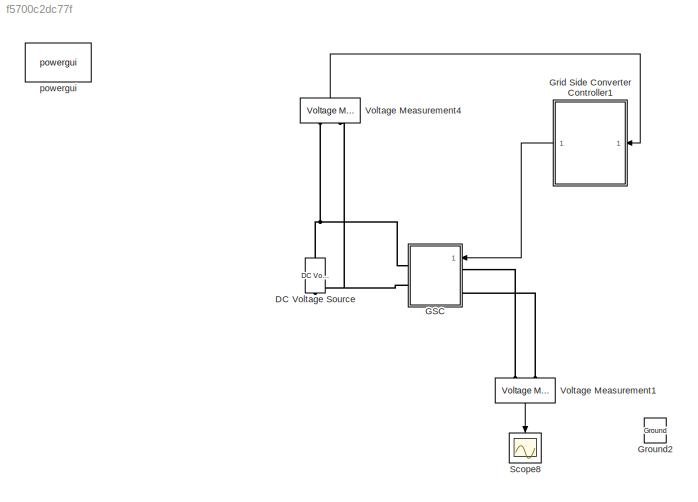
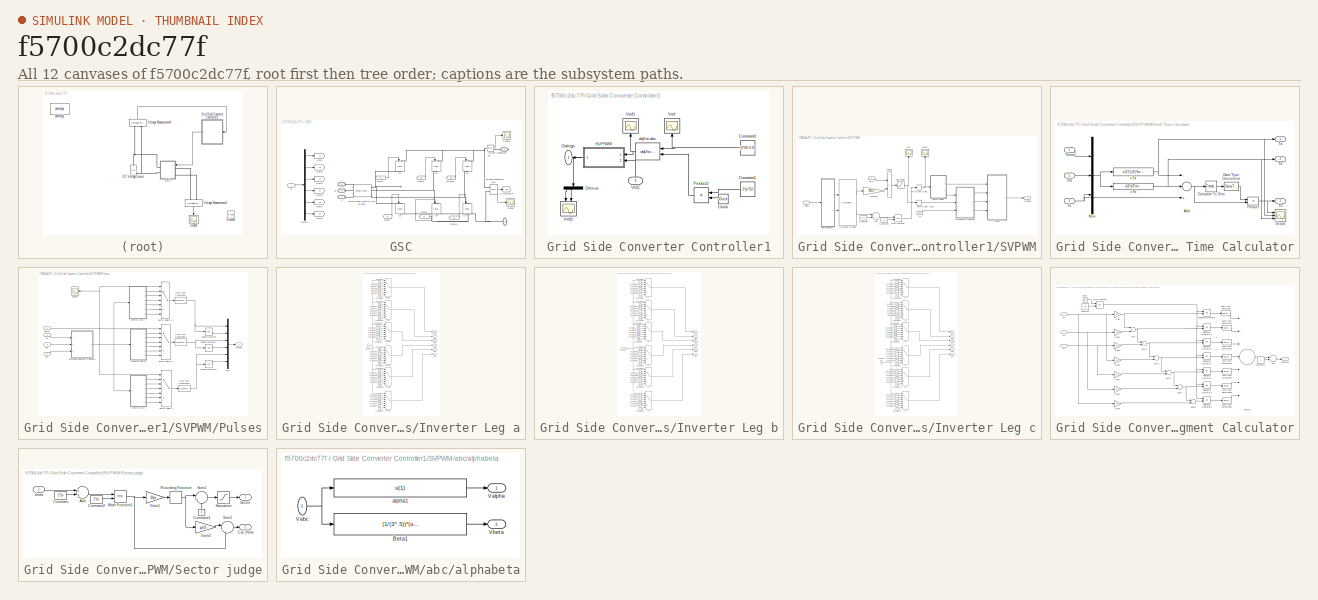
[diagram: thumbnail index - all 12 canvases of the model, root first then tree order]
MODEL slx_f5700c2dc77f
KIND model
BLOCK [Reference] DC Voltage Source  REF=powerlib/Electrical
Sources/DC Voltage Source
  Amplitude = 800
  Measurements = None
  Ports = [0, 0, 0, 0, 0, 1, 1]
  SourceBlock = powerlib/Electrical\nSources/DC Voltage Source
  SourceType = DC Voltage Source
BLOCK [SubSystem] GSC
  FunctionWithSeparateData = off
  MaskHideContents = off
  MinAlgLoopOccurrences = off
  Opaque = off
  Ports = [1, 0, 0, 0, 0, 3, 2]
  PropExecContextOutsideSubsystem = off
  RTWSystemCode = Auto
  RequestExecContextInheritance = off
BLOCK [Reference] GSC/ S1  REF=powerlib/Power
Electronics/Ideal Switch
  Cs = inf
  IC = 1
  Lon = 0
  Measurements = off
  Ports = [1, 0, 0, 0, 0, 1, 1]
  Ron = Ron
  Rs = 1e9
  SourceBlock = powerlib/Power\nElectronics/Ideal Switch
  SourceType = Ideal Switch
BLOCK [Reference] GSC/ S2  REF=powerlib/Power
Electronics/Ideal Switch
  Cs = inf
  IC = 0
  Lon = 0
  Measurements = off
  Ports = [1, 0, 0, 0, 0, 1, 1]
  Ron = Ron
  Rs = 1e9
  SourceBlock = powerlib/Power\nElectronics/Ideal Switch
  SourceType = Ideal Switch
BLOCK [Reference] GSC/ S3  REF=powerlib/Power
Electronics/Ideal Switch
  Cs = inf
  IC = 1
  Lon = 0
  Measurements = off
  Ports = [1, 0, 0, 0, 0, 1, 1]
  Ron = Ron
  Rs = 1e9
  SourceBlock = powerlib/Power\nElectronics/Ideal Switch
  SourceType = Ideal Switch
BLOCK [Reference] GSC/ S4  REF=powerlib/Power
Electronics/Ideal Switch
  Cs = inf
  IC = 0
  Lon = 0
  Measurements = off
  Ports = [1, 0, 0, 0, 0, 1, 1]
  Ron = Ron
  Rs = 1e9
  SourceBlock = powerlib/Power\nElectronics/Ideal Switch
  SourceType = Ideal Switch
BLOCK [Reference] GSC/ S5  REF=powerlib/Power
Electronics/Ideal Switch
  Cs = inf
  IC = 1
  Lon = 0
  Measurements = off
  Ports = [1, 0, 0, 0, 0, 1, 1]
  Ron = Ron
  Rs = 1e9
  SourceBlock = powerlib/Power\nElectronics/Ideal Switch
  SourceType = Ideal Switch
BLOCK [Reference] GSC/ S6  REF=powerlib/Power
Electronics/Ideal Switch
  Cs = inf
  IC = 0
  Lon = 0
  Measurements = off
  Ports = [1, 0, 0, 0, 0, 1, 1]
  Ron = Ron
  Rs = 1e9
  SourceBlock = powerlib/Power\nElectronics/Ideal Switch
  SourceType = Ideal Switch
BLOCK [PMIOPort] GSC/+
  Port = 1
  Side = Right
BLOCK [PMIOPort] GSC/-
  Port = 5
  Side = Right
BLOCK [PMIOPort] GSC/A
  Port = 2
  Side = Left
BLOCK [PMIOPort] GSC/B
  Port = 3
  Side = Left
BLOCK [PMIOPort] GSC/C
  Port = 4
  Side = Left
BLOCK [Reference] GSC/Current Measurement  REF=powerlib/Measurements/Current Measurement
  OutputType = Complex
  PSBequivalent = 0
  PhasorSimulation = off
  Ports = [0, 1, 0, 0, 0, 1, 1]
  SourceBlock = powerlib/Measurements/Current Measurement
  SourceType = Current Measurement
BLOCK [Demux] GSC/Demux
  DisplayOption = bar
  Outputs = 6
  Ports = [1, 6]
BLOCK [From] GSC/From10
  CloseFcn = tagdialog Close
  GotoTag = s5
BLOCK [From] GSC/From11
  CloseFcn = tagdialog Close
  GotoTag = s6
BLOCK [From] GSC/From6
  CloseFcn = tagdialog Close
  GotoTag = s1
BLOCK [From] GSC/From7
  CloseFcn = tagdialog Close
  GotoTag = s2
BLOCK [From] GSC/From8
  CloseFcn = tagdialog Close
  GotoTag = s3
BLOCK [From] GSC/From9
  CloseFcn = tagdialog Close
  GotoTag = s4
BLOCK [Inport] GSC/G
  IconDisplay = Port number
BLOCK [Goto] GSC/Goto
  GotoTag = s1
BLOCK [Goto] GSC/Goto1
  GotoTag = s2
BLOCK [Goto] GSC/Goto2
  GotoTag = s3
BLOCK [Goto] GSC/Goto3
  GotoTag = s4
BLOCK [Goto] GSC/Goto4
  GotoTag = s5
BLOCK [Goto] GSC/Goto5
  GotoTag = s6
BLOCK [Scope] GSC/Scope
  DataFormat = StructureWithTime
  Floating = off
  LimitDataPoints = off
  NumInputPorts = 1
  Ports = [1]
  SampleTime = 0
  SaveName = ScopeData8
  ShowLegends = off
  YMax = 800
  YMin = 800
  ZoomMode = xonly
BLOCK [Scope] GSC/Scope1
  DataFormat = StructureWithTime
  Floating = off
  LimitDataPoints = off
  NumInputPorts = 1
  Ports = [1]
  SampleTime = 0
  SaveName = ScopeData9
  ShowLegends = off
  YMax = -1e-06
  YMin = -1.6e-05
  ZoomMode = xonly
BLOCK [Goto] GSC/Sin_cos_grid4
  GotoTag = Vdc
  TagVisibility = global
BLOCK [Reference] GSC/Three-Phase Parallel RLC Branch  REF=powerlib/Elements/Three-Phase
Parallel RLC Branch
  AttributesFormatString = \n
  BranchType = L
  Capacitance = 1e-6
  Inductance = 1e-3
  LConnTagsString = A|B|C
  Measurements = None
  Ports = [0, 0, 0, 0, 0, 3, 3]
  RConnTagsString = A|B|C
  Resistance = 1
  SourceBlock = powerlib/Elements/Three-Phase\nParallel RLC Branch
  SourceType = Three-Phase Parallel RLC Branch
BLOCK [Reference] GSC/Voltage Measurement4  REF=powerlib/Measurements/Voltage Measurement
  OutputType = Complex
  PSBequivalent = 0
  PhasorSimulation = off
  Ports = [0, 1, 0, 0, 0, 2]
  SourceBlock = powerlib/Measurements/Voltage Measurement
  SourceType = Voltage Measurement
BLOCK [SubSystem] Grid Side Converter Controller1
  FunctionWithSeparateData = off
  MaskHideContents = off
  MinAlgLoopOccurrences = off
  Opaque = off
  Ports = [1, 1]
  PropExecContextOutsideSubsystem = off
  RTWSystemCode = Auto
  RequestExecContextInheritance = off
BLOCK [Clock] Grid Side Converter Controller1/Clock
BLOCK [Constant] Grid Side Converter Controller1/Constant1
  Value = 2*pi*50
BLOCK [Constant] Grid Side Converter Controller1/Constant2
  Value = [700 0 0]
BLOCK [Demux] Grid Side Converter Controller1/Demux
  DisplayOption = bar
  Outputs = 6
  Ports = [1, 6]
BLOCK [Outport] Grid Side Converter Controller1/Gatings
  IconDisplay = Port number
BLOCK [Product] Grid Side Converter Controller1/Product2
  InputSameDT = off
  OutDataTypeStr = Inherit: Inherit via internal rule
  Ports = [2, 1]
  RndMeth = Floor
  SaturateOnIntegerOverflow = off
BLOCK [SubSystem] Grid Side Converter Controller1/SVPWM
  FunctionWithSeparateData = off
  MaskHideContents = off
  MinAlgLoopOccurrences = off
  Opaque = off
  Ports = [2, 1]
  PropExecContextOutsideSubsystem = off
  RTWSystemCode = Auto
  RequestExecContextInheritance = off
BLOCK [Sum] Grid Side Converter Controller1/SVPWM/Add
  InputSameDT = off
  OutDataTypeStr = Inherit: Inherit via internal rule
  Ports = [2, 1]
  SaturateOnIntegerOverflow = off
BLOCK [Reference] Grid Side Converter Controller1/SVPWM/Cartesian to Polar  REF=simulink_extras/Transformations/Cartesian to
Polar
  Ports = [2, 2]
  SourceBlock = simulink_extras/Transformations/Cartesian to\nPolar
  SourceType = Cart2Polar
BLOCK [Constant] Grid Side Converter Controller1/SVPWM/Constant
  Value = 2*pi
BLOCK [Constant] Grid Side Converter Controller1/SVPWM/Constant1
  Value = 2*pi
BLOCK [Product] Grid Side Converter Controller1/SVPWM/Divide
  InputSameDT = off
  Inputs = /*
  OutDataTypeStr = Inherit: Inherit via internal rule
  Ports = [2, 1]
  RndMeth = Floor
  SaturateOnIntegerOverflow = off
BLOCK [SubSystem] Grid Side Converter Controller1/SVPWM/Dwell Time Calculator
  FunctionWithSeparateData = off
  MaskHideContents = off
  MinAlgLoopOccurrences = off
  Opaque = off
  Ports = [3, 3]
  PropExecContextOutsideSubsystem = off
  RTWSystemCode = Auto
  RequestExecContextInheritance = off
BLOCK [Sum] Grid Side Converter Controller1/SVPWM/Dwell Time Calculator/Add
  InputSameDT = off
  Inputs = --+
  OutDataTypeStr = Inherit: Inherit via internal rule
  Ports = [3, 1]
  SaturateOnIntegerOverflow = off
BLOCK [Reference] Grid Side Converter Controller1/SVPWM/Dwell Time Calculator/Compare To Zero  REF=simulink/Logic and Bit
Operations/Compare
To Zero
  OutDataTypeStr = boolean
  Ports = [1, 1]
  SourceBlock = simulink/Logic and Bit\nOperations/Compare\nTo Zero
  SourceType = Compare To Zero
  ZeroCross = on
  relop = >=
BLOCK [DataTypeConversion] Grid Side Converter Controller1/SVPWM/Dwell Time Calculator/Data Type Conversion
  OutDataTypeStr = double
  RndMeth = Floor
  SaturateOnIntegerOverflow = off
BLOCK [Mux] Grid Side Converter Controller1/SVPWM/Dwell Time Calculator/Mux
  DisplayOption = bar
  Inputs = 3
  Ports = [3, 1]
BLOCK [Product] Grid Side Converter Controller1/SVPWM/Dwell Time Calculator/Product
  InputSameDT = off
  OutDataTypeStr = Inherit: Inherit via internal rule
  Ports = [2, 1]
  SaturateOnIntegerOverflow = off
BLOCK [Scope] Grid Side Converter Controller1/SVPWM/Dwell Time Calculator/Scope
  DataFormat = StructureWithTime
  Floating = off
  LimitDataPoints = off
  NumInputPorts = 3
  Ports = [3]
  SampleTime = 0
  SaveName = ScopeData12
  ShowLegends = off
  YMax = 5~5~5
  YMin = -5~-5~-5
BLOCK [Outport] Grid Side Converter Controller1/SVPWM/Dwell Time Calculator/T0
  IconDisplay = Port number
  Port = 3
BLOCK [Outport] Grid Side Converter Controller1/SVPWM/Dwell Time Calculator/Ta
  IconDisplay = Port number
BLOCK [Outport] Grid Side Converter Controller1/SVPWM/Dwell Time Calculator/Tb
  IconDisplay = Port number
  Port = 2
BLOCK [Inport] Grid Side Converter Controller1/SVPWM/Dwell Time Calculator/Theta
  IconDisplay = Port number
BLOCK [Inport] Grid Side Converter Controller1/SVPWM/Dwell Time Calculator/Ts
  IconDisplay = Port number
  Port = 3
BLOCK [Fcn] Grid Side Converter Controller1/SVPWM/Dwell Time Calculator/cTa
  Expr = u(2)*u(3)*sin((pi/3)-u(1))
BLOCK [Fcn] Grid Side Converter Controller1/SVPWM/Dwell Time Calculator/cTb
  Expr = u(2)*u(3)*sin(u(1))
BLOCK [Inport] Grid Side Converter Controller1/SVPWM/Dwell Time Calculator/ma
  IconDisplay = Port number
  Port = 2
BLOCK [Outport] Grid Side Converter Controller1/SVPWM/Gatings
  IconDisplay = Port number
BLOCK [Math] Grid Side Converter Controller1/SVPWM/Math Function
  Operator = rem
  Ports = [2, 1]
BLOCK [SubSystem] Grid Side Converter Controller1/SVPWM/Pulses
  FunctionWithSeparateData = off
  MaskHideContents = off
  MinAlgLoopOccurrences = off
  Opaque = off
  Ports = [4, 1]
  PropExecContextOutsideSubsystem = off
  RTWSystemCode = Auto
  RequestExecContextInheritance = off
BLOCK [DataTypeConversion] Grid Side Converter Controller1/SVPWM/Pulses/Data Type Conversion
  OutDataTypeStr = boolean
BLOCK [DataTypeConversion] Grid Side Converter Controller1/SVPWM/Pulses/Data Type Conversion1
  OutDataTypeStr = boolean
BLOCK [DataTypeConversion] Grid Side Converter Controller1/SVPWM/Pulses/Data Type Conversion2
  OutDataTypeStr = boolean
BLOCK [Outport] Grid Side Converter Controller1/SVPWM/Pulses/Gating
  IconDisplay = Port number
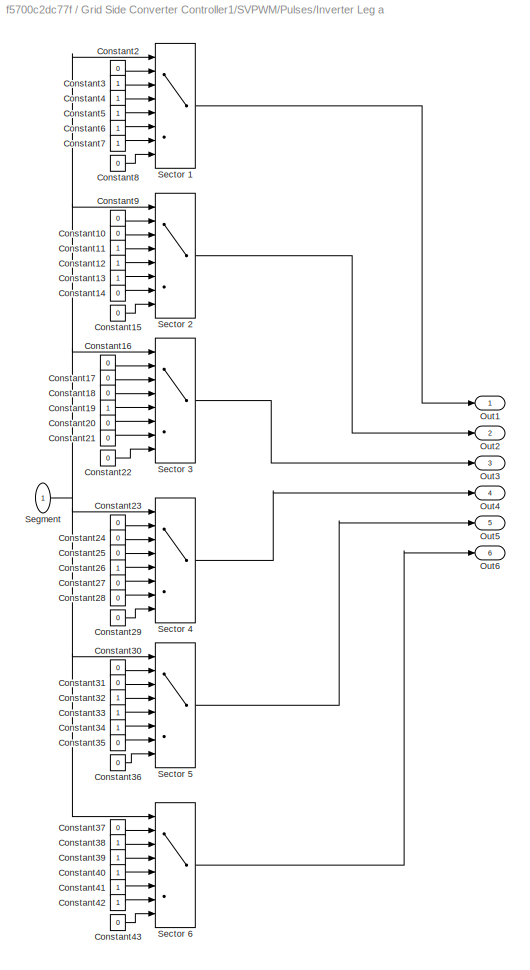
BLOCK [SubSystem] Grid Side Converter Controller1/SVPWM/Pulses/Inverter Leg a
  FunctionWithSeparateData = off
  MaskHideContents = off
  MinAlgLoopOccurrences = off
  Opaque = off
  Ports = [1, 6]
  PropExecContextOutsideSubsystem = off
  RTWSystemCode = Auto
  RequestExecContextInheritance = off
BLOCK [Constant] Grid Side Converter Controller1/SVPWM/Pulses/Inverter Leg a/Constant10
  Value = 0
BLOCK [Constant] Grid Side Converter Controller1/SVPWM/Pulses/Inverter Leg a/Constant11
BLOCK [Constant] Grid Side Converter Controller1/SVPWM/Pulses/Inverter Leg a/Constant12
BLOCK [Constant] Grid Side Converter Controller1/SVPWM/Pulses/Inverter Leg a/Constant13
BLOCK [Constant] Grid Side Converter Controller1/SVPWM/Pulses/Inverter Leg a/Constant14
  Value = 0
BLOCK [Constant] Grid Side Converter Controller1/SVPWM/Pulses/Inverter Leg a/Constant15
  Value = 0
BLOCK [Constant] Grid Side Converter Controller1/SVPWM/Pulses/Inverter Leg a/Constant16
  Value = 0
BLOCK [Constant] Grid Side Converter Controller1/SVPWM/Pulses/Inverter Leg a/Constant17
  Value = 0
BLOCK [Constant] Grid Side Converter Controller1/SVPWM/Pulses/Inverter Leg a/Constant18
  Value = 0
BLOCK [Constant] Grid Side Converter Controller1/SVPWM/Pulses/Inverter Leg a/Constant19
BLOCK [Constant] Grid Side Converter Controller1/SVPWM/Pulses/Inverter Leg a/Constant2
  Value = 0
BLOCK [Constant] Grid Side Converter Controller1/SVPWM/Pulses/Inverter Leg a/Constant20
  Value = 0
BLOCK [Constant] Grid Side Converter Controller1/SVPWM/Pulses/Inverter Leg a/Constant21
  Value = 0
BLOCK [Constant] Grid Side Converter Controller1/SVPWM/Pulses/Inverter Leg a/Constant22
  Value = 0
BLOCK [Constant] Grid Side Converter Controller1/SVPWM/Pulses/Inverter Leg a/Constant23
  Value = 0
BLOCK [Constant] Grid Side Converter Controller1/SVPWM/Pulses/Inverter Leg a/Constant24
  Value = 0
BLOCK [Constant] Grid Side Converter Controller1/SVPWM/Pulses/Inverter Leg a/Constant25
  Value = 0
BLOCK [Constant] Grid Side Converter Controller1/SVPWM/Pulses/Inverter Leg a/Constant26
BLOCK [Constant] Grid Side Converter Controller1/SVPWM/Pulses/Inverter Leg a/Constant27
  Value = 0
BLOCK [Constant] Grid Side Converter Controller1/SVPWM/Pulses/Inverter Leg a/Constant28
  Value = 0
BLOCK [Constant] Grid Side Converter Controller1/SVPWM/Pulses/Inverter Leg a/Constant29
  Value = 0
BLOCK [Constant] Grid Side Converter Controller1/SVPWM/Pulses/Inverter Leg a/Constant3
BLOCK [Constant] Grid Side Converter Controller1/SVPWM/Pulses/Inverter Leg a/Constant30
  Value = 0
BLOCK [Constant] Grid Side Converter Controller1/SVPWM/Pulses/Inverter Leg a/Constant31
  Value = 0
BLOCK [Constant] Grid Side Converter Controller1/SVPWM/Pulses/Inverter Leg a/Constant32
BLOCK [Constant] Grid Side Converter Controller1/SVPWM/Pulses/Inverter Leg a/Constant33
BLOCK [Constant] Grid Side Converter Controller1/SVPWM/Pulses/Inverter Leg a/Constant34
BLOCK [Constant] Grid Side Converter Controller1/SVPWM/Pulses/Inverter Leg a/Constant35
  Value = 0
BLOCK [Constant] Grid Side Converter Controller1/SVPWM/Pulses/Inverter Leg a/Constant36
  Value = 0
BLOCK [Constant] Grid Side Converter Controller1/SVPWM/Pulses/Inverter Leg a/Constant37
  Value = 0
BLOCK [Constant] Grid Side Converter Controller1/SVPWM/Pulses/Inverter Leg a/Constant38
BLOCK [Constant] Grid Side Converter Controller1/SVPWM/Pulses/Inverter Leg a/Constant39
BLOCK [Constant] Grid Side Converter Controller1/SVPWM/Pulses/Inverter Leg a/Constant4
BLOCK [Constant] Grid Side Converter Controller1/SVPWM/Pulses/Inverter Leg a/Constant40
BLOCK [Constant] Grid Side Converter Controller1/SVPWM/Pulses/Inverter Leg a/Constant41
BLOCK [Constant] Grid Side Converter Controller1/SVPWM/Pulses/Inverter Leg a/Constant42
BLOCK [Constant] Grid Side Converter Controller1/SVPWM/Pulses/Inverter Leg a/Constant43
  Value = 0
BLOCK [Constant] Grid Side Converter Controller1/SVPWM/Pulses/Inverter Leg a/Constant5
BLOCK [Constant] Grid Side Converter Controller1/SVPWM/Pulses/Inverter Leg a/Constant6
BLOCK [Constant] Grid Side Converter Controller1/SVPWM/Pulses/Inverter Leg a/Constant7
BLOCK [Constant] Grid Side Converter Controller1/SVPWM/Pulses/Inverter Leg a/Constant8
  Value = 0
BLOCK [Constant] Grid Side Converter Controller1/SVPWM/Pulses/Inverter Leg a/Constant9
  Value = 0
BLOCK [Outport] Grid Side Converter Controller1/SVPWM/Pulses/Inverter Leg a/Out1
  IconDisplay = Port number
BLOCK [Outport] Grid Side Converter Controller1/SVPWM/Pulses/Inverter Leg a/Out2
  IconDisplay = Port number
  Port = 2
BLOCK [Outport] Grid Side Converter Controller1/SVPWM/Pulses/Inverter Leg a/Out3
  IconDisplay = Port number
  Port = 3
BLOCK [Outport] Grid Side Converter Controller1/SVPWM/Pulses/Inverter Leg a/Out4
  IconDisplay = Port number
  Port = 4
BLOCK [Outport] Grid Side Converter Controller1/SVPWM/Pulses/Inverter Leg a/Out5
  IconDisplay = Port number
  Port = 5
BLOCK [Outport] Grid Side Converter Controller1/SVPWM/Pulses/Inverter Leg a/Out6
  IconDisplay = Port number
  Port = 6
BLOCK [MultiPortSwitch] Grid Side Converter Controller1/SVPWM/Pulses/Inverter Leg a/Sector 1
  InputSameDT = off
  Inputs = 7
  Ports = [8, 1]
  SaturateOnIntegerOverflow = off
BLOCK [MultiPortSwitch] Grid Side Converter Controller1/SVPWM/Pulses/Inverter Leg a/Sector 2
  InputSameDT = off
  Inputs = 7
  Ports = [8, 1]
  SaturateOnIntegerOverflow = off
BLOCK [MultiPortSwitch] Grid Side Converter Controller1/SVPWM/Pulses/Inverter Leg a/Sector 3
  InputSameDT = off
  Inputs = 7
  Ports = [8, 1]
  SaturateOnIntegerOverflow = off
BLOCK [MultiPortSwitch] Grid Side Converter Controller1/SVPWM/Pulses/Inverter Leg a/Sector 4
  InputSameDT = off
  Inputs = 7
  Ports = [8, 1]
  SaturateOnIntegerOverflow = off
BLOCK [MultiPortSwitch] Grid Side Converter Controller1/SVPWM/Pulses/Inverter Leg a/Sector 5
  InputSameDT = off
  Inputs = 7
  Ports = [8, 1]
  SaturateOnIntegerOverflow = off
BLOCK [MultiPortSwitch] Grid Side Converter Controller1/SVPWM/Pulses/Inverter Leg a/Sector 6
  InputSameDT = off
  Inputs = 7
  Ports = [8, 1]
  SaturateOnIntegerOverflow = off
BLOCK [Inport] Grid Side Converter Controller1/SVPWM/Pulses/Inverter Leg a/Segment
  IconDisplay = Port number
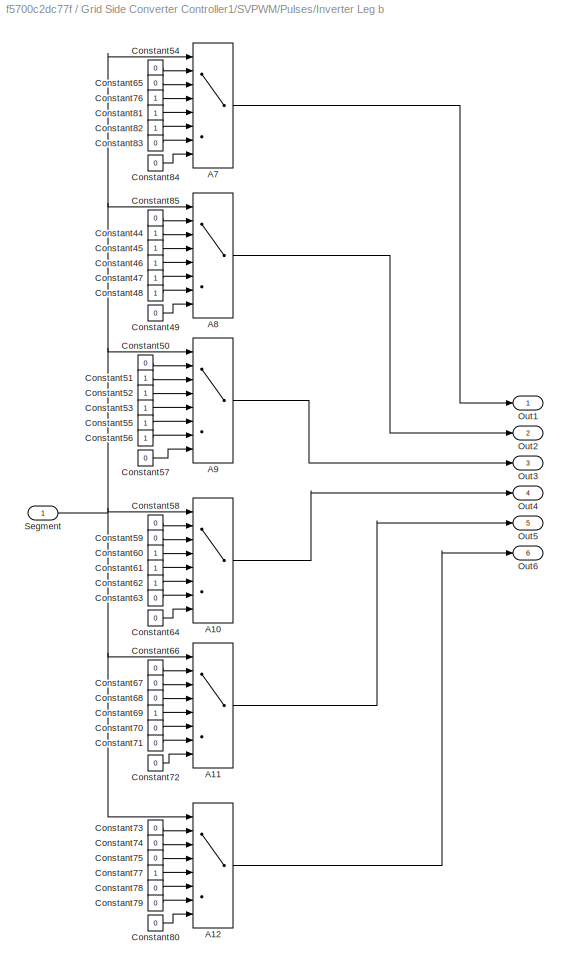
BLOCK [SubSystem] Grid Side Converter Controller1/SVPWM/Pulses/Inverter Leg b
  FunctionWithSeparateData = off
  MaskHideContents = off
  MinAlgLoopOccurrences = off
  Opaque = off
  Ports = [1, 6]
  PropExecContextOutsideSubsystem = off
  RTWSystemCode = Auto
  RequestExecContextInheritance = off
BLOCK [MultiPortSwitch] Grid Side Converter Controller1/SVPWM/Pulses/Inverter Leg b/A10
  InputSameDT = off
  Inputs = 7
  Ports = [8, 1]
  SaturateOnIntegerOverflow = off
BLOCK [MultiPortSwitch] Grid Side Converter Controller1/SVPWM/Pulses/Inverter Leg b/A11
  InputSameDT = off
  Inputs = 7
  Ports = [8, 1]
  SaturateOnIntegerOverflow = off
BLOCK [MultiPortSwitch] Grid Side Converter Controller1/SVPWM/Pulses/Inverter Leg b/A12
  InputSameDT = off
  Inputs = 7
  Ports = [8, 1]
  SaturateOnIntegerOverflow = off
BLOCK [MultiPortSwitch] Grid Side Converter Controller1/SVPWM/Pulses/Inverter Leg b/A7
  InputSameDT = off
  Inputs = 7
  Ports = [8, 1]
  SaturateOnIntegerOverflow = off
BLOCK [MultiPortSwitch] Grid Side Converter Controller1/SVPWM/Pulses/Inverter Leg b/A8
  InputSameDT = off
  Inputs = 7
  Ports = [8, 1]
  SaturateOnIntegerOverflow = off
BLOCK [MultiPortSwitch] Grid Side Converter Controller1/SVPWM/Pulses/Inverter Leg b/A9
  InputSameDT = off
  Inputs = 7
  Ports = [8, 1]
  SaturateOnIntegerOverflow = off
BLOCK [Constant] Grid Side Converter Controller1/SVPWM/Pulses/Inverter Leg b/Constant44
BLOCK [Constant] Grid Side Converter Controller1/SVPWM/Pulses/Inverter Leg b/Constant45
BLOCK [Constant] Grid Side Converter Controller1/SVPWM/Pulses/Inverter Leg b/Constant46
BLOCK [Constant] Grid Side Converter Controller1/SVPWM/Pulses/Inverter Leg b/Constant47
BLOCK [Constant] Grid Side Converter Controller1/SVPWM/Pulses/Inverter Leg b/Constant48
BLOCK [Constant] Grid Side Converter Controller1/SVPWM/Pulses/Inverter Leg b/Constant49
  Value = 0
BLOCK [Constant] Grid Side Converter Controller1/SVPWM/Pulses/Inverter Leg b/Constant50
  Value = 0
BLOCK [Constant] Grid Side Converter Controller1/SVPWM/Pulses/Inverter Leg b/Constant51
BLOCK [Constant] Grid Side Converter Controller1/SVPWM/Pulses/Inverter Leg b/Constant52
BLOCK [Constant] Grid Side Converter Controller1/SVPWM/Pulses/Inverter Leg b/Constant53
BLOCK [Constant] Grid Side Converter Controller1/SVPWM/Pulses/Inverter Leg b/Constant54
  Value = 0
BLOCK [Constant] Grid Side Converter Controller1/SVPWM/Pulses/Inverter Leg b/Constant55
BLOCK [Constant] Grid Side Converter Controller1/SVPWM/Pulses/Inverter Leg b/Constant56
BLOCK [Constant] Grid Side Converter Controller1/SVPWM/Pulses/Inverter Leg b/Constant57
  Value = 0
BLOCK [Constant] Grid Side Converter Controller1/SVPWM/Pulses/Inverter Leg b/Constant58
  Value = 0
BLOCK [Constant] Grid Side Converter Controller1/SVPWM/Pulses/Inverter Leg b/Constant59
  Value = 0
BLOCK [Constant] Grid Side Converter Controller1/SVPWM/Pulses/Inverter Leg b/Constant60
BLOCK [Constant] Grid Side Converter Controller1/SVPWM/Pulses/Inverter Leg b/Constant61
BLOCK [Constant] Grid Side Converter Controller1/SVPWM/Pulses/Inverter Leg b/Constant62
BLOCK [Constant] Grid Side Converter Controller1/SVPWM/Pulses/Inverter Leg b/Constant63
  Value = 0
BLOCK [Constant] Grid Side Converter Controller1/SVPWM/Pulses/Inverter Leg b/Constant64
  Value = 0
BLOCK [Constant] Grid Side Converter Controller1/SVPWM/Pulses/Inverter Leg b/Constant65
  Value = 0
BLOCK [Constant] Grid Side Converter Controller1/SVPWM/Pulses/Inverter Leg b/Constant66
  Value = 0
BLOCK [Constant] Grid Side Converter Controller1/SVPWM/Pulses/Inverter Leg b/Constant67
  Value = 0
BLOCK [Constant] Grid Side Converter Controller1/SVPWM/Pulses/Inverter Leg b/Constant68
  Value = 0
BLOCK [Constant] Grid Side Converter Controller1/SVPWM/Pulses/Inverter Leg b/Constant69
BLOCK [Constant] Grid Side Converter Controller1/SVPWM/Pulses/Inverter Leg b/Constant70
  Value = 0
BLOCK [Constant] Grid Side Converter Controller1/SVPWM/Pulses/Inverter Leg b/Constant71
  Value = 0
BLOCK [Constant] Grid Side Converter Controller1/SVPWM/Pulses/Inverter Leg b/Constant72
  Value = 0
BLOCK [Constant] Grid Side Converter Controller1/SVPWM/Pulses/Inverter Leg b/Constant73
  Value = 0
BLOCK [Constant] Grid Side Converter Controller1/SVPWM/Pulses/Inverter Leg b/Constant74
  Value = 0
BLOCK [Constant] Grid Side Converter Controller1/SVPWM/Pulses/Inverter Leg b/Constant75
  Value = 0
BLOCK [Constant] Grid Side Converter Controller1/SVPWM/Pulses/Inverter Leg b/Constant76
BLOCK [Constant] Grid Side Converter Controller1/SVPWM/Pulses/Inverter Leg b/Constant77
BLOCK [Constant] Grid Side Converter Controller1/SVPWM/Pulses/Inverter Leg b/Constant78
  Value = 0
BLOCK [Constant] Grid Side Converter Controller1/SVPWM/Pulses/Inverter Leg b/Constant79
  Value = 0
BLOCK [Constant] Grid Side Converter Controller1/SVPWM/Pulses/Inverter Leg b/Constant80
  Value = 0
BLOCK [Constant] Grid Side Converter Controller1/SVPWM/Pulses/Inverter Leg b/Constant81
BLOCK [Constant] Grid Side Converter Controller1/SVPWM/Pulses/Inverter Leg b/Constant82
BLOCK [Constant] Grid Side Converter Controller1/SVPWM/Pulses/Inverter Leg b/Constant83
  Value = 0
BLOCK [Constant] Grid Side Converter Controller1/SVPWM/Pulses/Inverter Leg b/Constant84
  Value = 0
BLOCK [Constant] Grid Side Converter Controller1/SVPWM/Pulses/Inverter Leg b/Constant85
  Value = 0
BLOCK [Outport] Grid Side Converter Controller1/SVPWM/Pulses/Inverter Leg b/Out1
  IconDisplay = Port number
BLOCK [Outport] Grid Side Converter Controller1/SVPWM/Pulses/Inverter Leg b/Out2
  IconDisplay = Port number
  Port = 2
BLOCK [Outport] Grid Side Converter Controller1/SVPWM/Pulses/Inverter Leg b/Out3
  IconDisplay = Port number
  Port = 3
BLOCK [Outport] Grid Side Converter Controller1/SVPWM/Pulses/Inverter Leg b/Out4
  IconDisplay = Port number
  Port = 4
BLOCK [Outport] Grid Side Converter Controller1/SVPWM/Pulses/Inverter Leg b/Out5
  IconDisplay = Port number
  Port = 5
BLOCK [Outport] Grid Side Converter Controller1/SVPWM/Pulses/Inverter Leg b/Out6
  IconDisplay = Port number
  Port = 6
BLOCK [Inport] Grid Side Converter Controller1/SVPWM/Pulses/Inverter Leg b/Segment
  IconDisplay = Port number
BLOCK [SubSystem] Grid Side Converter Controller1/SVPWM/Pulses/Inverter Leg c
  FunctionWithSeparateData = off
  MaskHideContents = off
  MinAlgLoopOccurrences = off
  Opaque = off
  Ports = [1, 6]
  PropExecContextOutsideSubsystem = off
  RTWSystemCode = Auto
  RequestExecContextInheritance = off
BLOCK [MultiPortSwitch] Grid Side Converter Controller1/SVPWM/Pulses/Inverter Leg c/A14
  InputSameDT = off
  Inputs = 7
  Ports = [8, 1]
  SaturateOnIntegerOverflow = off
BLOCK [MultiPortSwitch] Grid Side Converter Controller1/SVPWM/Pulses/Inverter Leg c/A15
  InputSameDT = off
  Inputs = 7
  Ports = [8, 1]
  SaturateOnIntegerOverflow = off
BLOCK [MultiPortSwitch] Grid Side Converter Controller1/SVPWM/Pulses/Inverter Leg c/A16
  InputSameDT = off
  Inputs = 7
  Ports = [8, 1]
  SaturateOnIntegerOverflow = off
BLOCK [MultiPortSwitch] Grid Side Converter Controller1/SVPWM/Pulses/Inverter Leg c/A17
  InputSameDT = off
  Inputs = 7
  Ports = [8, 1]
  SaturateOnIntegerOverflow = off
BLOCK [MultiPortSwitch] Grid Side Converter Controller1/SVPWM/Pulses/Inverter Leg c/A18
  InputSameDT = off
  Inputs = 7
  Ports = [8, 1]
  SaturateOnIntegerOverflow = off
BLOCK [MultiPortSwitch] Grid Side Converter Controller1/SVPWM/Pulses/Inverter Leg c/A19
  InputSameDT = off
  Inputs = 7
  Ports = [8, 1]
  SaturateOnIntegerOverflow = off
BLOCK [Constant] Grid Side Converter Controller1/SVPWM/Pulses/Inverter Leg c/Constant100
  Value = 0
BLOCK [Constant] Grid Side Converter Controller1/SVPWM/Pulses/Inverter Leg c/Constant101
BLOCK [Constant] Grid Side Converter Controller1/SVPWM/Pulses/Inverter Leg c/Constant102
BLOCK [Constant] Grid Side Converter Controller1/SVPWM/Pulses/Inverter Leg c/Constant103
BLOCK [Constant] Grid Side Converter Controller1/SVPWM/Pulses/Inverter Leg c/Constant104
BLOCK [Constant] Grid Side Converter Controller1/SVPWM/Pulses/Inverter Leg c/Constant105
BLOCK [Constant] Grid Side Converter Controller1/SVPWM/Pulses/Inverter Leg c/Constant106
  Value = 0
BLOCK [Constant] Grid Side Converter Controller1/SVPWM/Pulses/Inverter Leg c/Constant107
  Value = 0
BLOCK [Constant] Grid Side Converter Controller1/SVPWM/Pulses/Inverter Leg c/Constant108
  Value = 0
BLOCK [Constant] Grid Side Converter Controller1/SVPWM/Pulses/Inverter Leg c/Constant109
BLOCK [Constant] Grid Side Converter Controller1/SVPWM/Pulses/Inverter Leg c/Constant110
BLOCK [Constant] Grid Side Converter Controller1/SVPWM/Pulses/Inverter Leg c/Constant111
BLOCK [Constant] Grid Side Converter Controller1/SVPWM/Pulses/Inverter Leg c/Constant112
BLOCK [Constant] Grid Side Converter Controller1/SVPWM/Pulses/Inverter Leg c/Constant113
BLOCK [Constant] Grid Side Converter Controller1/SVPWM/Pulses/Inverter Leg c/Constant114
  Value = 0
BLOCK [Constant] Grid Side Converter Controller1/SVPWM/Pulses/Inverter Leg c/Constant115
  Value = 0
BLOCK [Constant] Grid Side Converter Controller1/SVPWM/Pulses/Inverter Leg c/Constant116
  Value = 0
BLOCK [Constant] Grid Side Converter Controller1/SVPWM/Pulses/Inverter Leg c/Constant117
BLOCK [Constant] Grid Side Converter Controller1/SVPWM/Pulses/Inverter Leg c/Constant118
  Value = 0
BLOCK [Constant] Grid Side Converter Controller1/SVPWM/Pulses/Inverter Leg c/Constant119
BLOCK [Constant] Grid Side Converter Controller1/SVPWM/Pulses/Inverter Leg c/Constant120
BLOCK [Constant] Grid Side Converter Controller1/SVPWM/Pulses/Inverter Leg c/Constant121
  Value = 0
BLOCK [Constant] Grid Side Converter Controller1/SVPWM/Pulses/Inverter Leg c/Constant122
  Value = 0
BLOCK [Constant] Grid Side Converter Controller1/SVPWM/Pulses/Inverter Leg c/Constant123
BLOCK [Constant] Grid Side Converter Controller1/SVPWM/Pulses/Inverter Leg c/Constant124
  Value = 0
BLOCK [Constant] Grid Side Converter Controller1/SVPWM/Pulses/Inverter Leg c/Constant125
  Value = 0
BLOCK [Constant] Grid Side Converter Controller1/SVPWM/Pulses/Inverter Leg c/Constant126
  Value = 0
BLOCK [Constant] Grid Side Converter Controller1/SVPWM/Pulses/Inverter Leg c/Constant127
  Value = 0
BLOCK [Constant] Grid Side Converter Controller1/SVPWM/Pulses/Inverter Leg c/Constant86
  Value = 0
BLOCK [Constant] Grid Side Converter Controller1/SVPWM/Pulses/Inverter Leg c/Constant87
  Value = 0
BLOCK [Constant] Grid Side Converter Controller1/SVPWM/Pulses/Inverter Leg c/Constant88
BLOCK [Constant] Grid Side Converter Controller1/SVPWM/Pulses/Inverter Leg c/Constant89
  Value = 0
BLOCK [Constant] Grid Side Converter Controller1/SVPWM/Pulses/Inverter Leg c/Constant90
  Value = 0
BLOCK [Constant] Grid Side Converter Controller1/SVPWM/Pulses/Inverter Leg c/Constant91
  Value = 0
BLOCK [Constant] Grid Side Converter Controller1/SVPWM/Pulses/Inverter Leg c/Constant92
  Value = 0
BLOCK [Constant] Grid Side Converter Controller1/SVPWM/Pulses/Inverter Leg c/Constant93
  Value = 0
BLOCK [Constant] Grid Side Converter Controller1/SVPWM/Pulses/Inverter Leg c/Constant94
BLOCK [Constant] Grid Side Converter Controller1/SVPWM/Pulses/Inverter Leg c/Constant95
BLOCK [Constant] Grid Side Converter Controller1/SVPWM/Pulses/Inverter Leg c/Constant96
  Value = 0
BLOCK [Constant] Grid Side Converter Controller1/SVPWM/Pulses/Inverter Leg c/Constant97
BLOCK [Constant] Grid Side Converter Controller1/SVPWM/Pulses/Inverter Leg c/Constant98
  Value = 0
BLOCK [Constant] Grid Side Converter Controller1/SVPWM/Pulses/Inverter Leg c/Constant99
  Value = 0
BLOCK [Outport] Grid Side Converter Controller1/SVPWM/Pulses/Inverter Leg c/Out1
  IconDisplay = Port number
BLOCK [Outport] Grid Side Converter Controller1/SVPWM/Pulses/Inverter Leg c/Out2
  IconDisplay = Port number
  Port = 2
BLOCK [Outport] Grid Side Converter Controller1/SVPWM/Pulses/Inverter Leg c/Out3
  IconDisplay = Port number
  Port = 3
BLOCK [Outport] Grid Side Converter Controller1/SVPWM/Pulses/Inverter Leg c/Out4
  IconDisplay = Port number
  Port = 4
BLOCK [Outport] Grid Side Converter Controller1/SVPWM/Pulses/Inverter Leg c/Out5
  IconDisplay = Port number
  Port = 5
BLOCK [Outport] Grid Side Converter Controller1/SVPWM/Pulses/Inverter Leg c/Out6
  IconDisplay = Port number
  Port = 6
BLOCK [Inport] Grid Side Converter Controller1/SVPWM/Pulses/Inverter Leg c/Segment
  IconDisplay = Port number
BLOCK [Logic] Grid Side Converter Controller1/SVPWM/Pulses/Logical Operator
  AllPortsSameDT = off
  Operator = NOT
  Ports = [1, 1]
BLOCK [Logic] Grid Side Converter Controller1/SVPWM/Pulses/Logical Operator1
  AllPortsSameDT = off
  Operator = NOT
  Ports = [1, 1]
BLOCK [Logic] Grid Side Converter Controller1/SVPWM/Pulses/Logical Operator2
  AllPortsSameDT = off
  Operator = NOT
  Ports = [1, 1]
BLOCK [Mux] Grid Side Converter Controller1/SVPWM/Pulses/Mux
  DisplayOption = bar
  Inputs = 6
  Ports = [6, 1]
BLOCK [Scope] Grid Side Converter Controller1/SVPWM/Pulses/Scope1
  Floating = off
  LimitDataPoints = off
  NumInputPorts = 1
  Ports = [1]
  SaveName = ScopeData2
  ShowLegends = off
BLOCK [Inport] Grid Side Converter Controller1/SVPWM/Pulses/Sector
  IconDisplay = Port number
BLOCK [MultiPortSwitch] Grid Side Converter Controller1/SVPWM/Pulses/Sector Select a
  DiagnosticForDefault = None
  InputSameDT = off
  Inputs = 6
  Ports = [7, 1]
  SaturateOnIntegerOverflow = off
BLOCK [MultiPortSwitch] Grid Side Converter Controller1/SVPWM/Pulses/Sector Select b
  DiagnosticForDefault = None
  InputSameDT = off
  Inputs = 6
  Ports = [7, 1]
  SaturateOnIntegerOverflow = off
BLOCK [MultiPortSwitch] Grid Side Converter Controller1/SVPWM/Pulses/Sector Select c
  DiagnosticForDefault = None
  InputSameDT = off
  Inputs = 6
  Ports = [7, 1]
  SaturateOnIntegerOverflow = off
BLOCK [SubSystem] Grid Side Converter Controller1/SVPWM/Pulses/Switching Segment Calculator
  FunctionWithSeparateData = off
  MaskHideContents = off
  MinAlgLoopOccurrences = off
  Opaque = off
  Ports = [3, 1]
  PropExecContextOutsideSubsystem = off
  RTWSystemCode = Auto
  RequestExecContextInheritance = off
BLOCK [Sum] Grid Side Converter Controller1/SVPWM/Pulses/Switching Segment Calculator/Add
  InputSameDT = off
  OutDataTypeStr = Inherit: Inherit via internal rule
  Ports = [2, 1]
  SaturateOnIntegerOverflow = off
BLOCK [Clock] Grid Side Converter Controller1/SVPWM/Pulses/Switching Segment Calculator/Clock
BLOCK [Constant] Grid Side Converter Controller1/SVPWM/Pulses/Switching Segment Calculator/Constant
  Value = 1/Fs
BLOCK [Constant] Grid Side Converter Controller1/SVPWM/Pulses/Switching Segment Calculator/Constant1
BLOCK [DataTypeConversion] Grid Side Converter Controller1/SVPWM/Pulses/Switching Segment Calculator/Data Type Conversion
  OutDataTypeStr = double
  RndMeth = Floor
  SaturateOnIntegerOverflow = off
BLOCK [DataTypeConversion] Grid Side Converter Controller1/SVPWM/Pulses/Switching Segment Calculator/Data Type Conversion1
  OutDataTypeStr = double
  RndMeth = Floor
  SaturateOnIntegerOverflow = off
BLOCK [DataTypeConversion] Grid Side Converter Controller1/SVPWM/Pulses/Switching Segment Calculator/Data Type Conversion2
  OutDataTypeStr = double
  RndMeth = Floor
  SaturateOnIntegerOverflow = off
BLOCK [DataTypeConversion] Grid Side Converter Controller1/SVPWM/Pulses/Switching Segment Calculator/Data Type Conversion3
  OutDataTypeStr = double
  RndMeth = Floor
  SaturateOnIntegerOverflow = off
BLOCK [DataTypeConversion] Grid Side Converter Controller1/SVPWM/Pulses/Switching Segment Calculator/Data Type Conversion4
  OutDataTypeStr = double
  RndMeth = Floor
  SaturateOnIntegerOverflow = off
BLOCK [DataTypeConversion] Grid Side Converter Controller1/SVPWM/Pulses/Switching Segment Calculator/Data Type Conversion5
  OutDataTypeStr = double
  RndMeth = Floor
  SaturateOnIntegerOverflow = off
BLOCK [DataTypeConversion] Grid Side Converter Controller1/SVPWM/Pulses/Switching Segment Calculator/Data Type Conversion6
  OutDataTypeStr = double
  RndMeth = Floor
  SaturateOnIntegerOverflow = off
BLOCK [Gain] Grid Side Converter Controller1/SVPWM/Pulses/Switching Segment Calculator/Gain
  Gain = 1/4
  OutDataTypeStr = Inherit: Inherit via internal rule
  ParamDataTypeStr = Inherit: Inherit via internal rule
  SaturateOnIntegerOverflow = off
BLOCK [Gain] Grid Side Converter Controller1/SVPWM/Pulses/Switching Segment Calculator/Gain1
  Gain = 1/2
  OutDataTypeStr = Inherit: Inherit via internal rule
  ParamDataTypeStr = Inherit: Inherit via internal rule
  SaturateOnIntegerOverflow = off
BLOCK [Gain] Grid Side Converter Controller1/SVPWM/Pulses/Switching Segment Calculator/Gain2
  Gain = 1/2
  OutDataTypeStr = Inherit: Inherit via internal rule
  ParamDataTypeStr = Inherit: Inherit via internal rule
  SaturateOnIntegerOverflow = off
BLOCK [Gain] Grid Side Converter Controller1/SVPWM/Pulses/Switching Segment Calculator/Gain3
  Gain = 1/2
  OutDataTypeStr = Inherit: Inherit via internal rule
  ParamDataTypeStr = Inherit: Inherit via internal rule
  SaturateOnIntegerOverflow = off
BLOCK [Gain] Grid Side Converter Controller1/SVPWM/Pulses/Switching Segment Calculator/Gain4
  Gain = 1/2
  OutDataTypeStr = Inherit: Inherit via internal rule
  ParamDataTypeStr = Inherit: Inherit via internal rule
  SaturateOnIntegerOverflow = off
BLOCK [Gain] Grid Side Converter Controller1/SVPWM/Pulses/Switching Segment Calculator/Gain5
  Gain = 1/2
  OutDataTypeStr = Inherit: Inherit via internal rule
  ParamDataTypeStr = Inherit: Inherit via internal rule
  SaturateOnIntegerOverflow = off
BLOCK [Gain] Grid Side Converter Controller1/SVPWM/Pulses/Switching Segment Calculator/Gain6
  Gain = 1/4
  OutDataTypeStr = Inherit: Inherit via internal rule
  ParamDataTypeStr = Inherit: Inherit via internal rule
  SaturateOnIntegerOverflow = off
BLOCK [Math] Grid Side Converter Controller1/SVPWM/Pulses/Switching Segment Calculator/Math Function
  Operator = rem
  Ports = [2, 1]
BLOCK [RelationalOperator] Grid Side Converter Controller1/SVPWM/Pulses/Switching Segment Calculator/Relational Operator
  InputSameDT = off
  OutDataTypeStr = boolean
  Ports = [2, 1]
BLOCK [RelationalOperator] Grid Side Converter Controller1/SVPWM/Pulses/Switching Segment Calculator/Relational Operator1
  InputSameDT = off
  OutDataTypeStr = boolean
  Ports = [2, 1]
BLOCK [RelationalOperator] Grid Side Converter Controller1/SVPWM/Pulses/Switching Segment Calculator/Relational Operator2
  InputSameDT = off
  OutDataTypeStr = boolean
  Ports = [2, 1]
BLOCK [RelationalOperator] Grid Side Converter Controller1/SVPWM/Pulses/Switching Segment Calculator/Relational Operator3
  InputSameDT = off
  OutDataTypeStr = boolean
  Ports = [2, 1]
BLOCK [RelationalOperator] Grid Side Converter Controller1/SVPWM/Pulses/Switching Segment Calculator/Relational Operator4
  InputSameDT = off
  OutDataTypeStr = boolean
  Ports = [2, 1]
BLOCK [RelationalOperator] Grid Side Converter Controller1/SVPWM/Pulses/Switching Segment Calculator/Relational Operator5
  InputSameDT = off
  OutDataTypeStr = boolean
  Ports = [2, 1]
BLOCK [RelationalOperator] Grid Side Converter Controller1/SVPWM/Pulses/Switching Segment Calculator/Relational Operator6
  InputSameDT = off
  OutDataTypeStr = boolean
  Ports = [2, 1]
BLOCK [Outport] Grid Side Converter Controller1/SVPWM/Pulses/Switching Segment Calculator/Segment
  IconDisplay = Port number
BLOCK [Sum] Grid Side Converter Controller1/SVPWM/Pulses/Switching Segment Calculator/Sum
  InputSameDT = off
  OutDataTypeStr = Inherit: Inherit via internal rule
  Ports = [2, 1]
  SaturateOnIntegerOverflow = off
BLOCK [Sum] Grid Side Converter Controller1/SVPWM/Pulses/Switching Segment Calculator/Sum1
  InputSameDT = off
  OutDataTypeStr = Inherit: Inherit via internal rule
  Ports = [2, 1]
  SaturateOnIntegerOverflow = off
BLOCK [Sum] Grid Side Converter Controller1/SVPWM/Pulses/Switching Segment Calculator/Sum2
  InputSameDT = off
  OutDataTypeStr = Inherit: Inherit via internal rule
  Ports = [2, 1]
  SaturateOnIntegerOverflow = off
BLOCK [Sum] Grid Side Converter Controller1/SVPWM/Pulses/Switching Segment Calculator/Sum3
  InputSameDT = off
  OutDataTypeStr = Inherit: Inherit via internal rule
  Ports = [2, 1]
  SaturateOnIntegerOverflow = off
BLOCK [Sum] Grid Side Converter Controller1/SVPWM/Pulses/Switching Segment Calculator/Sum4
  InputSameDT = off
  OutDataTypeStr = Inherit: Inherit via internal rule
  Ports = [2, 1]
  SaturateOnIntegerOverflow = off
BLOCK [Sum] Grid Side Converter Controller1/SVPWM/Pulses/Switching Segment Calculator/Sum5
  InputSameDT = off
  OutDataTypeStr = Inherit: Inherit via internal rule
  Ports = [2, 1]
  SaturateOnIntegerOverflow = off
BLOCK [Inport] Grid Side Converter Controller1/SVPWM/Pulses/Switching Segment Calculator/T0
  IconDisplay = Port number
BLOCK [Inport] Grid Side Converter Controller1/SVPWM/Pulses/Switching Segment Calculator/Ta
  IconDisplay = Port number
  Port = 2
BLOCK [Inport] Grid Side Converter Controller1/SVPWM/Pulses/Switching Segment Calculator/Tb
  IconDisplay = Port number
  Port = 3
BLOCK [Sum] Grid Side Converter Controller1/SVPWM/Pulses/Switching Segment Calculator/netsum
  Inputs = 7
  Ports = [7, 1]
BLOCK [Inport] Grid Side Converter Controller1/SVPWM/Pulses/T0
  IconDisplay = Port number
  Port = 4
BLOCK [Inport] Grid Side Converter Controller1/SVPWM/Pulses/Ta1
  IconDisplay = Port number
  Port = 2
BLOCK [Inport] Grid Side Converter Controller1/SVPWM/Pulses/Tb1
  IconDisplay = Port number
  Port = 3
BLOCK [Saturate] Grid Side Converter Controller1/SVPWM/Saturation
  InputPortMap = u0
  LowerLimit = 0
  Ports = [1, 1]
  SampleTime = 1/Fsampling
  UpperLimit = 0.8
BLOCK [SubSystem] Grid Side Converter Controller1/SVPWM/Sector judge
  FunctionWithSeparateData = off
  MaskHideContents = off
  MinAlgLoopOccurrences = off
  Opaque = off
  Ports = [1, 2]
  PropExecContextOutsideSubsystem = off
  RTWSystemCode = Auto
  RequestExecContextInheritance = off
BLOCK [Sum] Grid Side Converter Controller1/SVPWM/Sector judge/Add
  InputSameDT = off
  OutDataTypeStr = Inherit: Inherit via internal rule
  Ports = [2, 1]
  SaturateOnIntegerOverflow = off
BLOCK [Outport] Grid Side Converter Controller1/SVPWM/Sector judge/Cal_theta
  IconDisplay = Port number
  Port = 2
BLOCK [Constant] Grid Side Converter Controller1/SVPWM/Sector judge/Constant
  Value = 2*pi
BLOCK [Constant] Grid Side Converter Controller1/SVPWM/Sector judge/Constant1
  OutDataTypeStr = boolean
BLOCK [Constant] Grid Side Converter Controller1/SVPWM/Sector judge/Constant2
  Value = 2*pi
BLOCK [Gain] Grid Side Converter Controller1/SVPWM/Sector judge/Gain1
  Gain = 3/pi
  OutDataTypeStr = Inherit: Inherit via internal rule
  ParamDataTypeStr = Inherit: Inherit via internal rule
  SaturateOnIntegerOverflow = off
BLOCK [Gain] Grid Side Converter Controller1/SVPWM/Sector judge/Gain2
  Gain = pi/3
  OutDataTypeStr = Inherit: Inherit via internal rule
  ParamDataTypeStr = Inherit: Inherit via internal rule
  SaturateOnIntegerOverflow = off
BLOCK [Math] Grid Side Converter Controller1/SVPWM/Sector judge/Math Function1
  Operator = rem
  Ports = [2, 1]
BLOCK [Rounding] Grid Side Converter Controller1/SVPWM/Sector judge/Rounding Function
BLOCK [Saturate] Grid Side Converter Controller1/SVPWM/Sector judge/Saturation
  InputPortMap = u0
  LowerLimit = 1
  Ports = [1, 1]
  UpperLimit = 6
BLOCK [Outport] Grid Side Converter Controller1/SVPWM/Sector judge/Sector
  IconDisplay = Port number
BLOCK [Sum] Grid Side Converter Controller1/SVPWM/Sector judge/Sum1
  IconShape = round
  InputSameDT = off
  Inputs = |++
  OutDataTypeStr = Inherit: Inherit via internal rule
  Ports = [2, 1]
BLOCK [Sum] Grid Side Converter Controller1/SVPWM/Sector judge/Sum2
  IconShape = round
  InputSameDT = off
  Inputs = |-+
  OutDataTypeStr = Inherit: Inherit via internal rule
  Ports = [2, 1]
  SaturateOnIntegerOverflow = off
BLOCK [Inport] Grid Side Converter Controller1/SVPWM/Sector judge/theta
  IconDisplay = Port number
BLOCK [Constant] Grid Side Converter Controller1/SVPWM/Ts
  Value = 1/Fs
BLOCK [Inport] Grid Side Converter Controller1/SVPWM/VDC
  IconDisplay = Port number
  Port = 2
BLOCK [Inport] Grid Side Converter Controller1/SVPWM/Vabc
  IconDisplay = Port number
BLOCK [ZeroOrderHold] Grid Side Converter Controller1/SVPWM/Zero-Order Hold
  SampleTime = 1/(2*Fs)
BLOCK [ZeroOrderHold] Grid Side Converter Controller1/SVPWM/Zero-Order Hold1
  SampleTime = 1/(2*Fs)
BLOCK [SubSystem] Grid Side Converter Controller1/SVPWM/abc//alphabeta
  FunctionWithSeparateData = off
  MaskHideContents = off
  MinAlgLoopOccurrences = off
  Opaque = off
  Ports = [1, 2]
  PropExecContextOutsideSubsystem = off
  RTWSystemCode = Auto
  RequestExecContextInheritance = off
BLOCK [Fcn] Grid Side Converter Controller1/SVPWM/abc//alphabeta/Beta1
  Expr = (1/(3^.5))*(u(1)+2*u(2))
BLOCK [Inport] Grid Side Converter Controller1/SVPWM/abc//alphabeta/Vabc
  IconDisplay = Port number
BLOCK [Outport] Grid Side Converter Controller1/SVPWM/abc//alphabeta/Valpha
  IconDisplay = Port number
BLOCK [Outport] Grid Side Converter Controller1/SVPWM/abc//alphabeta/Vbeta
  IconDisplay = Port number
  Port = 2
BLOCK [Fcn] Grid Side Converter Controller1/SVPWM/abc//alphabeta/alpha1
  Expr = u(1)
BLOCK [Gain] Grid Side Converter Controller1/SVPWM/constant
  Gain = 3^0.5
  OutDataTypeStr = Inherit: Inherit via internal rule
  ParamDataTypeStr = Inherit: Inherit via internal rule
  SaturateOnIntegerOverflow = off
BLOCK [Scope] Grid Side Converter Controller1/SVPWM/ma
  Floating = off
  LimitDataPoints = off
  NumInputPorts = 1
  Ports = [1]
  SaveName = ScopeData5
  ShowLegends = off
  YMax = 2
  YMin = -1
BLOCK [Scope] Grid Side Converter Controller1/SVPWM/theta
  Floating = off
  LimitDataPoints = off
  NumInputPorts = 1
  Ports = [1]
  SaveName = ScopeData6
  ShowLegends = off
  YMax = 10
  YMin = -3.5
BLOCK [Inport] Grid Side Converter Controller1/VDC
  IconDisplay = Port number
BLOCK [Scope] Grid Side Converter Controller1/Vref
  DataFormat = StructureWithTime
  Floating = off
  LimitDataPoints = off
  NumInputPorts = 1
  Ports = [1]
  SampleTime = 0
  SaveName = ScopeData32
  ShowLegends = off
  YMax = 1300
  YMin = 0
BLOCK [Scope] Grid Side Converter Controller1/Vref1
  DataFormat = StructureWithTime
  Floating = off
  LimitDataPoints = off
  NumInputPorts = 1
  Ports = [1]
  SampleTime = 0
  SaveName = ScopeData35
  ShowLegends = off
  YMax = 1300
  YMin = -1000
BLOCK [Scope] Grid Side Converter Controller1/Vref2
  DataFormat = StructureWithTime
  Floating = off
  LimitDataPoints = off
  NumInputPorts = 2
  Ports = [2]
  SampleTime = 0
  SaveName = ScopeData22
  ShowLegends = off
  YMax = 2~2
  YMin = -2~-2
  ZoomMode = xonly
BLOCK [Reference] Grid Side Converter Controller1/dq0 to abc  REF=powerlib_meascontrol/Transformations/dq0 to abc
  Alignment = Aligned with phase A axis
  Ports = [2, 1]
  SourceBlock = powerlib_meascontrol/Transformations/dq0 to abc
  SourceType = dq0 to abc Transformation
BLOCK [Reference] Ground2  REF=powerlib/Elements/Ground
  LConnTagsString = a
  Ports = [0, 0, 0, 0, 0, 1]
  SourceBlock = powerlib/Elements/Ground
  SourceType = Ground
BLOCK [Scope] Scope8
  DataFormat = StructureWithTime
  Floating = off
  LimitDataPoints = off
  NumInputPorts = 1
  Ports = [1]
  SampleTime = 0
  ShowLegends = off
  YMax = 900
  YMin = -900
  ZoomMode = xonly
BLOCK [Reference] Voltage Measurement1  REF=powerlib/Measurements/Voltage Measurement
  OutputType = Complex
  PSBequivalent = 0
  PhasorSimulation = off
  Ports = [0, 1, 0, 0, 0, 2]
  SourceBlock = powerlib/Measurements/Voltage Measurement
  SourceType = Voltage Measurement
BLOCK [Reference] Voltage Measurement4  REF=powerlib/Measurements/Voltage Measurement
  OutputType = Complex
  PSBequivalent = 0
  PhasorSimulation = off
  Ports = [0, 1, 0, 0, 0, 2]
  SourceBlock = powerlib/Measurements/Voltage Measurement
  SourceType = Voltage Measurement
BLOCK [Reference] powergui  REF=powerlib/powergui
  DisableRonSwitches = off
  DisableSnubberDevices = off
  DisableVfSwitches = off
  DisplayEquations = off
  DisplayStyle = 1
  EnableUseOfTLC = off
  ErrMax = 1e-4
  Frange = [0:2:500]
  FreqAxis = off
  FunctionMessages = off
  HookPort = off
  Interpol = off
  Iterations = 50
  MaxFrequency = 1000
  Pbase = 100e6
  Ports = []
  Priority = 1
  ResistiveCurrentMeasurement = off
  RestoreLinks = warning
  RmsSteady = 1
  SPID = off
  SampleTime = 0.1e-5
  ShowGrid = off
  SolverType = Backward Euler
  SourceBlock = powerlib/powergui
  SourceType = PSB option menu block
  StartTime = 0.0
  SwTol = 0
  Ts = 0
  UnitsV = kV
  UnitsW = MW
  UserDataPersistent = on
  Xlog = on
  Ylog = off
  ZoomFFT = off
  cycles = 1
  display = off
  echomessages = off
  frequency = 60
  frequencyindice = 0
  frequencyindicesteady = 1
  fundamental = 60
  methode = off
  save = off
  variable = ZData
  x0status = blocks
ANNOTATION Grid Side Converter Controller1/SVPWM/Pulses/Switching Segment Calculator: 1 A
ANNOTATION Grid Side Converter Controller1/SVPWM/Pulses/Switching Segment Calculator: 1 B
ANNOTATION Grid Side Converter Controller1/SVPWM/Pulses/Switching Segment Calculator: 1 C
LINE GSC/Current Measurement:1 -> GSC/Scope1:1
LINE GSC/Demux:1 -> GSC/Goto:1
LINE GSC/Demux:2 -> GSC/Goto1:1
LINE GSC/Demux:3 -> GSC/Goto2:1
LINE GSC/Demux:4 -> GSC/Goto3:1
LINE GSC/Demux:5 -> GSC/Goto4:1
LINE GSC/Demux:6 -> GSC/Goto5:1
LINE GSC/From10:1 -> GSC/ S5:1
LINE GSC/From11:1 -> GSC/ S6:1
LINE GSC/From6:1 -> GSC/ S1:1
LINE GSC/From7:1 -> GSC/ S2:1
LINE GSC/From8:1 -> GSC/ S3:1
LINE GSC/From9:1 -> GSC/ S4:1
LINE GSC/G:1 -> GSC/Demux:1
NET GSC/Voltage Measurement4:1 -> GSC/Scope:1, GSC/Sin_cos_grid4:1
LINE Grid Side Converter Controller1/Clock:1 -> Grid Side Converter Controller1/Product2:2
LINE Grid Side Converter Controller1/Constant1:1 -> Grid Side Converter Controller1/Product2:1
NET Grid Side Converter Controller1/Constant2:1 -> Grid Side Converter Controller1/Vref:1, Grid Side Converter Controller1/dq0 to abc:1
LINE Grid Side Converter Controller1/Demux:1 -> Grid Side Converter Controller1/Vref2:1
LINE Grid Side Converter Controller1/Demux:2 -> Grid Side Converter Controller1/Vref2:2
LINE Grid Side Converter Controller1/Product2:1 -> Grid Side Converter Controller1/dq0 to abc:2
LINE Grid Side Converter Controller1/SVPWM/Add:1 -> Grid Side Converter Controller1/SVPWM/Math Function:1
LINE Grid Side Converter Controller1/SVPWM/Cartesian to Polar:1 -> Grid Side Converter Controller1/SVPWM/constant:1
LINE Grid Side Converter Controller1/SVPWM/Cartesian to Polar:2 -> Grid Side Converter Controller1/SVPWM/Add:1
LINE Grid Side Converter Controller1/SVPWM/Constant1:1 -> Grid Side Converter Controller1/SVPWM/Math Function:2
LINE Grid Side Converter Controller1/SVPWM/Constant:1 -> Grid Side Converter Controller1/SVPWM/Add:2
LINE Grid Side Converter Controller1/SVPWM/Divide:1 -> Grid Side Converter Controller1/SVPWM/Saturation:1
NET Grid Side Converter Controller1/SVPWM/Dwell Time Calculator/Add:1 -> Grid Side Converter Controller1/SVPWM/Dwell Time Calculator/Compare To Zero:1, Grid Side Converter Controller1/SVPWM/Dwell Time Calculator/Product:2
LINE Grid Side Converter Controller1/SVPWM/Dwell Time Calculator/Compare To Zero:1 -> Grid Side Converter Controller1/SVPWM/Dwell Time Calculator/Data Type Conversion:1
LINE Grid Side Converter Controller1/SVPWM/Dwell Time Calculator/Data Type Conversion:1 -> Grid Side Converter Controller1/SVPWM/Dwell Time Calculator/Product:1
NET Grid Side Converter Controller1/SVPWM/Dwell Time Calculator/Mux:1 -> Grid Side Converter Controller1/SVPWM/Dwell Time Calculator/cTa:1, Grid Side Converter Controller1/SVPWM/Dwell Time Calculator/cTb:1
NET Grid Side Converter Controller1/SVPWM/Dwell Time Calculator/Product:1 -> Grid Side Converter Controller1/SVPWM/Dwell Time Calculator/Scope:1, Grid Side Converter Controller1/SVPWM/Dwell Time Calculator/T0:1
LINE Grid Side Converter Controller1/SVPWM/Dwell Time Calculator/Theta:1 -> Grid Side Converter Controller1/SVPWM/Dwell Time Calculator/Mux:1
NET Grid Side Converter Controller1/SVPWM/Dwell Time Calculator/Ts:1 -> Grid Side Converter Controller1/SVPWM/Dwell Time Calculator/Add:3, Grid Side Converter Controller1/SVPWM/Dwell Time Calculator/Mux:3
NET Grid Side Converter Controller1/SVPWM/Dwell Time Calculator/cTa:1 -> Grid Side Converter Controller1/SVPWM/Dwell Time Calculator/Add:1, Grid Side Converter Controller1/SVPWM/Dwell Time Calculator/Scope:2, Grid Side Converter Controller1/SVPWM/Dwell Time Calculator/Ta:1
NET Grid Side Converter Controller1/SVPWM/Dwell Time Calculator/cTb:1 -> Grid Side Converter Controller1/SVPWM/Dwell Time Calculator/Add:2, Grid Side Converter Controller1/SVPWM/Dwell Time Calculator/Scope:3, Grid Side Converter Controller1/SVPWM/Dwell Time Calculator/Tb:1
LINE Grid Side Converter Controller1/SVPWM/Dwell Time Calculator/ma:1 -> Grid Side Converter Controller1/SVPWM/Dwell Time Calculator/Mux:2
LINE Grid Side Converter Controller1/SVPWM/Dwell Time Calculator:1 -> Grid Side Converter Controller1/SVPWM/Pulses:2
LINE Grid Side Converter Controller1/SVPWM/Dwell Time Calculator:2 -> Grid Side Converter Controller1/SVPWM/Pulses:3
LINE Grid Side Converter Controller1/SVPWM/Dwell Time Calculator:3 -> Grid Side Converter Controller1/SVPWM/Pulses:4
LINE Grid Side Converter Controller1/SVPWM/Math Function:1 -> Grid Side Converter Controller1/SVPWM/Zero-Order Hold1:1
NET Grid Side Converter Controller1/SVPWM/Pulses/Data Type Conversion1:1 -> Grid Side Converter Controller1/SVPWM/Pulses/Logical Operator1:1, Grid Side Converter Controller1/SVPWM/Pulses/Mux:3
NET Grid Side Converter Controller1/SVPWM/Pulses/Data Type Conversion2:1 -> Grid Side Converter Controller1/SVPWM/Pulses/Logical Operator2:1, Grid Side Converter Controller1/SVPWM/Pulses/Mux:5
NET Grid Side Converter Controller1/SVPWM/Pulses/Data Type Conversion:1 -> Grid Side Converter Controller1/SVPWM/Pulses/Logical Operator:1, Grid Side Converter Controller1/SVPWM/Pulses/Mux:1
LINE Grid Side Converter Controller1/SVPWM/Pulses/Inverter Leg a/Constant10:1 -> Grid Side Converter Controller1/SVPWM/Pulses/Inverter Leg a/Sector 2:3
LINE Grid Side Converter Controller1/SVPWM/Pulses/Inverter Leg a/Constant11:1 -> Grid Side Converter Controller1/SVPWM/Pulses/Inverter Leg a/Sector 2:4
LINE Grid Side Converter Controller1/SVPWM/Pulses/Inverter Leg a/Constant12:1 -> Grid Side Converter Controller1/SVPWM/Pulses/Inverter Leg a/Sector 2:5
LINE Grid Side Converter Controller1/SVPWM/Pulses/Inverter Leg a/Constant13:1 -> Grid Side Converter Controller1/SVPWM/Pulses/Inverter Leg a/Sector 2:6
LINE Grid Side Converter Controller1/SVPWM/Pulses/Inverter Leg a/Constant14:1 -> Grid Side Converter Controller1/SVPWM/Pulses/Inverter Leg a/Sector 2:7
LINE Grid Side Converter Controller1/SVPWM/Pulses/Inverter Leg a/Constant15:1 -> Grid Side Converter Controller1/SVPWM/Pulses/Inverter Leg a/Sector 2:8
LINE Grid Side Converter Controller1/SVPWM/Pulses/Inverter Leg a/Constant16:1 -> Grid Side Converter Controller1/SVPWM/Pulses/Inverter Leg a/Sector 3:2
LINE Grid Side Converter Controller1/SVPWM/Pulses/Inverter Leg a/Constant17:1 -> Grid Side Converter Controller1/SVPWM/Pulses/Inverter Leg a/Sector 3:3
LINE Grid Side Converter Controller1/SVPWM/Pulses/Inverter Leg a/Constant18:1 -> Grid Side Converter Controller1/SVPWM/Pulses/Inverter Leg a/Sector 3:4
LINE Grid Side Converter Controller1/SVPWM/Pulses/Inverter Leg a/Constant19:1 -> Grid Side Converter Controller1/SVPWM/Pulses/Inverter Leg a/Sector 3:5
LINE Grid Side Converter Controller1/SVPWM/Pulses/Inverter Leg a/Constant20:1 -> Grid Side Converter Controller1/SVPWM/Pulses/Inverter Leg a/Sector 3:6
LINE Grid Side Converter Controller1/SVPWM/Pulses/Inverter Leg a/Constant21:1 -> Grid Side Converter Controller1/SVPWM/Pulses/Inverter Leg a/Sector 3:7
LINE Grid Side Converter Controller1/SVPWM/Pulses/Inverter Leg a/Constant22:1 -> Grid Side Converter Controller1/SVPWM/Pulses/Inverter Leg a/Sector 3:8
LINE Grid Side Converter Controller1/SVPWM/Pulses/Inverter Leg a/Constant23:1 -> Grid Side Converter Controller1/SVPWM/Pulses/Inverter Leg a/Sector 4:2
LINE Grid Side Converter Controller1/SVPWM/Pulses/Inverter Leg a/Constant24:1 -> Grid Side Converter Controller1/SVPWM/Pulses/Inverter Leg a/Sector 4:3
LINE Grid Side Converter Controller1/SVPWM/Pulses/Inverter Leg a/Constant25:1 -> Grid Side Converter Controller1/SVPWM/Pulses/Inverter Leg a/Sector 4:4
LINE Grid Side Converter Controller1/SVPWM/Pulses/Inverter Leg a/Constant26:1 -> Grid Side Converter Controller1/SVPWM/Pulses/Inverter Leg a/Sector 4:5
LINE Grid Side Converter Controller1/SVPWM/Pulses/Inverter Leg a/Constant27:1 -> Grid Side Converter Controller1/SVPWM/Pulses/Inverter Leg a/Sector 4:6
LINE Grid Side Converter Controller1/SVPWM/Pulses/Inverter Leg a/Constant28:1 -> Grid Side Converter Controller1/SVPWM/Pulses/Inverter Leg a/Sector 4:7
LINE Grid Side Converter Controller1/SVPWM/Pulses/Inverter Leg a/Constant29:1 -> Grid Side Converter Controller1/SVPWM/Pulses/Inverter Leg a/Sector 4:8
LINE Grid Side Converter Controller1/SVPWM/Pulses/Inverter Leg a/Constant2:1 -> Grid Side Converter Controller1/SVPWM/Pulses/Inverter Leg a/Sector 1:2
LINE Grid Side Converter Controller1/SVPWM/Pulses/Inverter Leg a/Constant30:1 -> Grid Side Converter Controller1/SVPWM/Pulses/Inverter Leg a/Sector 5:2
LINE Grid Side Converter Controller1/SVPWM/Pulses/Inverter Leg a/Constant31:1 -> Grid Side Converter Controller1/SVPWM/Pulses/Inverter Leg a/Sector 5:3
LINE Grid Side Converter Controller1/SVPWM/Pulses/Inverter Leg a/Constant32:1 -> Grid Side Converter Controller1/SVPWM/Pulses/Inverter Leg a/Sector 5:4
LINE Grid Side Converter Controller1/SVPWM/Pulses/Inverter Leg a/Constant33:1 -> Grid Side Converter Controller1/SVPWM/Pulses/Inverter Leg a/Sector 5:5
LINE Grid Side Converter Controller1/SVPWM/Pulses/Inverter Leg a/Constant34:1 -> Grid Side Converter Controller1/SVPWM/Pulses/Inverter Leg a/Sector 5:6
LINE Grid Side Converter Controller1/SVPWM/Pulses/Inverter Leg a/Constant35:1 -> Grid Side Converter Controller1/SVPWM/Pulses/Inverter Leg a/Sector 5:7
LINE Grid Side Converter Controller1/SVPWM/Pulses/Inverter Leg a/Constant36:1 -> Grid Side Converter Controller1/SVPWM/Pulses/Inverter Leg a/Sector 5:8
LINE Grid Side Converter Controller1/SVPWM/Pulses/Inverter Leg a/Constant37:1 -> Grid Side Converter Controller1/SVPWM/Pulses/Inverter Leg a/Sector 6:2
LINE Grid Side Converter Controller1/SVPWM/Pulses/Inverter Leg a/Constant38:1 -> Grid Side Converter Controller1/SVPWM/Pulses/Inverter Leg a/Sector 6:3
LINE Grid Side Converter Controller1/SVPWM/Pulses/Inverter Leg a/Constant39:1 -> Grid Side Converter Controller1/SVPWM/Pulses/Inverter Leg a/Sector 6:4
LINE Grid Side Converter Controller1/SVPWM/Pulses/Inverter Leg a/Constant3:1 -> Grid Side Converter Controller1/SVPWM/Pulses/Inverter Leg a/Sector 1:3
LINE Grid Side Converter Controller1/SVPWM/Pulses/Inverter Leg a/Constant40:1 -> Grid Side Converter Controller1/SVPWM/Pulses/Inverter Leg a/Sector 6:5
LINE Grid Side Converter Controller1/SVPWM/Pulses/Inverter Leg a/Constant41:1 -> Grid Side Converter Controller1/SVPWM/Pulses/Inverter Leg a/Sector 6:6
LINE Grid Side Converter Controller1/SVPWM/Pulses/Inverter Leg a/Constant42:1 -> Grid Side Converter Controller1/SVPWM/Pulses/Inverter Leg a/Sector 6:7
LINE Grid Side Converter Controller1/SVPWM/Pulses/Inverter Leg a/Constant43:1 -> Grid Side Converter Controller1/SVPWM/Pulses/Inverter Leg a/Sector 6:8
LINE Grid Side Converter Controller1/SVPWM/Pulses/Inverter Leg a/Constant4:1 -> Grid Side Converter Controller1/SVPWM/Pulses/Inverter Leg a/Sector 1:4
LINE Grid Side Converter Controller1/SVPWM/Pulses/Inverter Leg a/Constant5:1 -> Grid Side Converter Controller1/SVPWM/Pulses/Inverter Leg a/Sector 1:5
LINE Grid Side Converter Controller1/SVPWM/Pulses/Inverter Leg a/Constant6:1 -> Grid Side Converter Controller1/SVPWM/Pulses/Inverter Leg a/Sector 1:6
LINE Grid Side Converter Controller1/SVPWM/Pulses/Inverter Leg a/Constant7:1 -> Grid Side Converter Controller1/SVPWM/Pulses/Inverter Leg a/Sector 1:7
LINE Grid Side Converter Controller1/SVPWM/Pulses/Inverter Leg a/Constant8:1 -> Grid Side Converter Controller1/SVPWM/Pulses/Inverter Leg a/Sector 1:8
LINE Grid Side Converter Controller1/SVPWM/Pulses/Inverter Leg a/Constant9:1 -> Grid Side Converter Controller1/SVPWM/Pulses/Inverter Leg a/Sector 2:2
LINE Grid Side Converter Controller1/SVPWM/Pulses/Inverter Leg a/Sector 1:1 -> Grid Side Converter Controller1/SVPWM/Pulses/Inverter Leg a/Out1:1
LINE Grid Side Converter Controller1/SVPWM/Pulses/Inverter Leg a/Sector 2:1 -> Grid Side Converter Controller1/SVPWM/Pulses/Inverter Leg a/Out2:1
LINE Grid Side Converter Controller1/SVPWM/Pulses/Inverter Leg a/Sector 3:1 -> Grid Side Converter Controller1/SVPWM/Pulses/Inverter Leg a/Out3:1
LINE Grid Side Converter Controller1/SVPWM/Pulses/Inverter Leg a/Sector 4:1 -> Grid Side Converter Controller1/SVPWM/Pulses/Inverter Leg a/Out4:1
LINE Grid Side Converter Controller1/SVPWM/Pulses/Inverter Leg a/Sector 5:1 -> Grid Side Converter Controller1/SVPWM/Pulses/Inverter Leg a/Out5:1
LINE Grid Side Converter Controller1/SVPWM/Pulses/Inverter Leg a/Sector 6:1 -> Grid Side Converter Controller1/SVPWM/Pulses/Inverter Leg a/Out6:1
NET Grid Side Converter Controller1/SVPWM/Pulses/Inverter Leg a/Segment:1 -> Grid Side Converter Controller1/SVPWM/Pulses/Inverter Leg a/Sector 1:1, Grid Side Converter Controller1/SVPWM/Pulses/Inverter Leg a/Sector 2:1, Grid Side Converter Controller1/SVPWM/Pulses/Inverter Leg a/Sector 3:1, Grid Side Converter Controller1/SVPWM/Pulses/Inverter Leg a/Sector 4:1, Grid Side Converter Controller1/SVPWM/Pulses/Inverter Leg a/Sector 5:1, Grid Side Converter Controller1/SVPWM/Pulses/Inverter Leg a/Sector 6:1
LINE Grid Side Converter Controller1/SVPWM/Pulses/Inverter Leg a:1 -> Grid Side Converter Controller1/SVPWM/Pulses/Sector Select a:2
LINE Grid Side Converter Controller1/SVPWM/Pulses/Inverter Leg a:2 -> Grid Side Converter Controller1/SVPWM/Pulses/Sector Select a:3
LINE Grid Side Converter Controller1/SVPWM/Pulses/Inverter Leg a:3 -> Grid Side Converter Controller1/SVPWM/Pulses/Sector Select a:4
LINE Grid Side Converter Controller1/SVPWM/Pulses/Inverter Leg a:4 -> Grid Side Converter Controller1/SVPWM/Pulses/Sector Select a:5
LINE Grid Side Converter Controller1/SVPWM/Pulses/Inverter Leg a:5 -> Grid Side Converter Controller1/SVPWM/Pulses/Sector Select a:6
LINE Grid Side Converter Controller1/SVPWM/Pulses/Inverter Leg a:6 -> Grid Side Converter Controller1/SVPWM/Pulses/Sector Select a:7
LINE Grid Side Converter Controller1/SVPWM/Pulses/Inverter Leg b/A10:1 -> Grid Side Converter Controller1/SVPWM/Pulses/Inverter Leg b/Out4:1
LINE Grid Side Converter Controller1/SVPWM/Pulses/Inverter Leg b/A11:1 -> Grid Side Converter Controller1/SVPWM/Pulses/Inverter Leg b/Out5:1
LINE Grid Side Converter Controller1/SVPWM/Pulses/Inverter Leg b/A12:1 -> Grid Side Converter Controller1/SVPWM/Pulses/Inverter Leg b/Out6:1
LINE Grid Side Converter Controller1/SVPWM/Pulses/Inverter Leg b/A7:1 -> Grid Side Converter Controller1/SVPWM/Pulses/Inverter Leg b/Out1:1
LINE Grid Side Converter Controller1/SVPWM/Pulses/Inverter Leg b/A8:1 -> Grid Side Converter Controller1/SVPWM/Pulses/Inverter Leg b/Out2:1
LINE Grid Side Converter Controller1/SVPWM/Pulses/Inverter Leg b/A9:1 -> Grid Side Converter Controller1/SVPWM/Pulses/Inverter Leg b/Out3:1
LINE Grid Side Converter Controller1/SVPWM/Pulses/Inverter Leg b/Constant44:1 -> Grid Side Converter Controller1/SVPWM/Pulses/Inverter Leg b/A8:3
LINE Grid Side Converter Controller1/SVPWM/Pulses/Inverter Leg b/Constant45:1 -> Grid Side Converter Controller1/SVPWM/Pulses/Inverter Leg b/A8:4
LINE Grid Side Converter Controller1/SVPWM/Pulses/Inverter Leg b/Constant46:1 -> Grid Side Converter Controller1/SVPWM/Pulses/Inverter Leg b/A8:5
LINE Grid Side Converter Controller1/SVPWM/Pulses/Inverter Leg b/Constant47:1 -> Grid Side Converter Controller1/SVPWM/Pulses/Inverter Leg b/A8:6
LINE Grid Side Converter Controller1/SVPWM/Pulses/Inverter Leg b/Constant48:1 -> Grid Side Converter Controller1/SVPWM/Pulses/Inverter Leg b/A8:7
LINE Grid Side Converter Controller1/SVPWM/Pulses/Inverter Leg b/Constant49:1 -> Grid Side Converter Controller1/SVPWM/Pulses/Inverter Leg b/A8:8
LINE Grid Side Converter Controller1/SVPWM/Pulses/Inverter Leg b/Constant50:1 -> Grid Side Converter Controller1/SVPWM/Pulses/Inverter Leg b/A9:2
LINE Grid Side Converter Controller1/SVPWM/Pulses/Inverter Leg b/Constant51:1 -> Grid Side Converter Controller1/SVPWM/Pulses/Inverter Leg b/A9:3
LINE Grid Side Converter Controller1/SVPWM/Pulses/Inverter Leg b/Constant52:1 -> Grid Side Converter Controller1/SVPWM/Pulses/Inverter Leg b/A9:4
LINE Grid Side Converter Controller1/SVPWM/Pulses/Inverter Leg b/Constant53:1 -> Grid Side Converter Controller1/SVPWM/Pulses/Inverter Leg b/A9:5
LINE Grid Side Converter Controller1/SVPWM/Pulses/Inverter Leg b/Constant54:1 -> Grid Side Converter Controller1/SVPWM/Pulses/Inverter Leg b/A7:2
LINE Grid Side Converter Controller1/SVPWM/Pulses/Inverter Leg b/Constant55:1 -> Grid Side Converter Controller1/SVPWM/Pulses/Inverter Leg b/A9:6
LINE Grid Side Converter Controller1/SVPWM/Pulses/Inverter Leg b/Constant56:1 -> Grid Side Converter Controller1/SVPWM/Pulses/Inverter Leg b/A9:7
LINE Grid Side Converter Controller1/SVPWM/Pulses/Inverter Leg b/Constant57:1 -> Grid Side Converter Controller1/SVPWM/Pulses/Inverter Leg b/A9:8
LINE Grid Side Converter Controller1/SVPWM/Pulses/Inverter Leg b/Constant58:1 -> Grid Side Converter Controller1/SVPWM/Pulses/Inverter Leg b/A10:2
LINE Grid Side Converter Controller1/SVPWM/Pulses/Inverter Leg b/Constant59:1 -> Grid Side Converter Controller1/SVPWM/Pulses/Inverter Leg b/A10:3
LINE Grid Side Converter Controller1/SVPWM/Pulses/Inverter Leg b/Constant60:1 -> Grid Side Converter Controller1/SVPWM/Pulses/Inverter Leg b/A10:4
LINE Grid Side Converter Controller1/SVPWM/Pulses/Inverter Leg b/Constant61:1 -> Grid Side Converter Controller1/SVPWM/Pulses/Inverter Leg b/A10:5
LINE Grid Side Converter Controller1/SVPWM/Pulses/Inverter Leg b/Constant62:1 -> Grid Side Converter Controller1/SVPWM/Pulses/Inverter Leg b/A10:6
LINE Grid Side Converter Controller1/SVPWM/Pulses/Inverter Leg b/Constant63:1 -> Grid Side Converter Controller1/SVPWM/Pulses/Inverter Leg b/A10:7
LINE Grid Side Converter Controller1/SVPWM/Pulses/Inverter Leg b/Constant64:1 -> Grid Side Converter Controller1/SVPWM/Pulses/Inverter Leg b/A10:8
LINE Grid Side Converter Controller1/SVPWM/Pulses/Inverter Leg b/Constant65:1 -> Grid Side Converter Controller1/SVPWM/Pulses/Inverter Leg b/A7:3
LINE Grid Side Converter Controller1/SVPWM/Pulses/Inverter Leg b/Constant66:1 -> Grid Side Converter Controller1/SVPWM/Pulses/Inverter Leg b/A11:2
LINE Grid Side Converter Controller1/SVPWM/Pulses/Inverter Leg b/Constant67:1 -> Grid Side Converter Controller1/SVPWM/Pulses/Inverter Leg b/A11:3
LINE Grid Side Converter Controller1/SVPWM/Pulses/Inverter Leg b/Constant68:1 -> Grid Side Converter Controller1/SVPWM/Pulses/Inverter Leg b/A11:4
LINE Grid Side Converter Controller1/SVPWM/Pulses/Inverter Leg b/Constant69:1 -> Grid Side Converter Controller1/SVPWM/Pulses/Inverter Leg b/A11:5
LINE Grid Side Converter Controller1/SVPWM/Pulses/Inverter Leg b/Constant70:1 -> Grid Side Converter Controller1/SVPWM/Pulses/Inverter Leg b/A11:6
LINE Grid Side Converter Controller1/SVPWM/Pulses/Inverter Leg b/Constant71:1 -> Grid Side Converter Controller1/SVPWM/Pulses/Inverter Leg b/A11:7
LINE Grid Side Converter Controller1/SVPWM/Pulses/Inverter Leg b/Constant72:1 -> Grid Side Converter Controller1/SVPWM/Pulses/Inverter Leg b/A11:8
LINE Grid Side Converter Controller1/SVPWM/Pulses/Inverter Leg b/Constant73:1 -> Grid Side Converter Controller1/SVPWM/Pulses/Inverter Leg b/A12:2
LINE Grid Side Converter Controller1/SVPWM/Pulses/Inverter Leg b/Constant74:1 -> Grid Side Converter Controller1/SVPWM/Pulses/Inverter Leg b/A12:3
LINE Grid Side Converter Controller1/SVPWM/Pulses/Inverter Leg b/Constant75:1 -> Grid Side Converter Controller1/SVPWM/Pulses/Inverter Leg b/A12:4
LINE Grid Side Converter Controller1/SVPWM/Pulses/Inverter Leg b/Constant76:1 -> Grid Side Converter Controller1/SVPWM/Pulses/Inverter Leg b/A7:4
LINE Grid Side Converter Controller1/SVPWM/Pulses/Inverter Leg b/Constant77:1 -> Grid Side Converter Controller1/SVPWM/Pulses/Inverter Leg b/A12:5
LINE Grid Side Converter Controller1/SVPWM/Pulses/Inverter Leg b/Constant78:1 -> Grid Side Converter Controller1/SVPWM/Pulses/Inverter Leg b/A12:6
LINE Grid Side Converter Controller1/SVPWM/Pulses/Inverter Leg b/Constant79:1 -> Grid Side Converter Controller1/SVPWM/Pulses/Inverter Leg b/A12:7
LINE Grid Side Converter Controller1/SVPWM/Pulses/Inverter Leg b/Constant80:1 -> Grid Side Converter Controller1/SVPWM/Pulses/Inverter Leg b/A12:8
LINE Grid Side Converter Controller1/SVPWM/Pulses/Inverter Leg b/Constant81:1 -> Grid Side Converter Controller1/SVPWM/Pulses/Inverter Leg b/A7:5
LINE Grid Side Converter Controller1/SVPWM/Pulses/Inverter Leg b/Constant82:1 -> Grid Side Converter Controller1/SVPWM/Pulses/Inverter Leg b/A7:6
LINE Grid Side Converter Controller1/SVPWM/Pulses/Inverter Leg b/Constant83:1 -> Grid Side Converter Controller1/SVPWM/Pulses/Inverter Leg b/A7:7
LINE Grid Side Converter Controller1/SVPWM/Pulses/Inverter Leg b/Constant84:1 -> Grid Side Converter Controller1/SVPWM/Pulses/Inverter Leg b/A7:8
LINE Grid Side Converter Controller1/SVPWM/Pulses/Inverter Leg b/Constant85:1 -> Grid Side Converter Controller1/SVPWM/Pulses/Inverter Leg b/A8:2
NET Grid Side Converter Controller1/SVPWM/Pulses/Inverter Leg b/Segment:1 -> Grid Side Converter Controller1/SVPWM/Pulses/Inverter Leg b/A10:1, Grid Side Converter Controller1/SVPWM/Pulses/Inverter Leg b/A11:1, Grid Side Converter Controller1/SVPWM/Pulses/Inverter Leg b/A12:1, Grid Side Converter Controller1/SVPWM/Pulses/Inverter Leg b/A7:1, Grid Side Converter Controller1/SVPWM/Pulses/Inverter Leg b/A8:1, Grid Side Converter Controller1/SVPWM/Pulses/Inverter Leg b/A9:1
LINE Grid Side Converter Controller1/SVPWM/Pulses/Inverter Leg b:1 -> Grid Side Converter Controller1/SVPWM/Pulses/Sector Select b:2
LINE Grid Side Converter Controller1/SVPWM/Pulses/Inverter Leg b:2 -> Grid Side Converter Controller1/SVPWM/Pulses/Sector Select b:3
LINE Grid Side Converter Controller1/SVPWM/Pulses/Inverter Leg b:3 -> Grid Side Converter Controller1/SVPWM/Pulses/Sector Select b:4
LINE Grid Side Converter Controller1/SVPWM/Pulses/Inverter Leg b:4 -> Grid Side Converter Controller1/SVPWM/Pulses/Sector Select b:5
LINE Grid Side Converter Controller1/SVPWM/Pulses/Inverter Leg b:5 -> Grid Side Converter Controller1/SVPWM/Pulses/Sector Select b:6
LINE Grid Side Converter Controller1/SVPWM/Pulses/Inverter Leg b:6 -> Grid Side Converter Controller1/SVPWM/Pulses/Sector Select b:7
LINE Grid Side Converter Controller1/SVPWM/Pulses/Inverter Leg c/A14:1 -> Grid Side Converter Controller1/SVPWM/Pulses/Inverter Leg c/Out1:1
LINE Grid Side Converter Controller1/SVPWM/Pulses/Inverter Leg c/A15:1 -> Grid Side Converter Controller1/SVPWM/Pulses/Inverter Leg c/Out2:1
LINE Grid Side Converter Controller1/SVPWM/Pulses/Inverter Leg c/A16:1 -> Grid Side Converter Controller1/SVPWM/Pulses/Inverter Leg c/Out3:1
LINE Grid Side Converter Controller1/SVPWM/Pulses/Inverter Leg c/A17:1 -> Grid Side Converter Controller1/SVPWM/Pulses/Inverter Leg c/Out4:1
LINE Grid Side Converter Controller1/SVPWM/Pulses/Inverter Leg c/A18:1 -> Grid Side Converter Controller1/SVPWM/Pulses/Inverter Leg c/Out5:1
LINE Grid Side Converter Controller1/SVPWM/Pulses/Inverter Leg c/A19:1 -> Grid Side Converter Controller1/SVPWM/Pulses/Inverter Leg c/Out6:1
LINE Grid Side Converter Controller1/SVPWM/Pulses/Inverter Leg c/Constant100:1 -> Grid Side Converter Controller1/SVPWM/Pulses/Inverter Leg c/A17:2
LINE Grid Side Converter Controller1/SVPWM/Pulses/Inverter Leg c/Constant101:1 -> Grid Side Converter Controller1/SVPWM/Pulses/Inverter Leg c/A17:3
LINE Grid Side Converter Controller1/SVPWM/Pulses/Inverter Leg c/Constant102:1 -> Grid Side Converter Controller1/SVPWM/Pulses/Inverter Leg c/A17:4
LINE Grid Side Converter Controller1/SVPWM/Pulses/Inverter Leg c/Constant103:1 -> Grid Side Converter Controller1/SVPWM/Pulses/Inverter Leg c/A17:5
LINE Grid Side Converter Controller1/SVPWM/Pulses/Inverter Leg c/Constant104:1 -> Grid Side Converter Controller1/SVPWM/Pulses/Inverter Leg c/A17:6
LINE Grid Side Converter Controller1/SVPWM/Pulses/Inverter Leg c/Constant105:1 -> Grid Side Converter Controller1/SVPWM/Pulses/Inverter Leg c/A17:7
LINE Grid Side Converter Controller1/SVPWM/Pulses/Inverter Leg c/Constant106:1 -> Grid Side Converter Controller1/SVPWM/Pulses/Inverter Leg c/A17:8
LINE Grid Side Converter Controller1/SVPWM/Pulses/Inverter Leg c/Constant107:1 -> Grid Side Converter Controller1/SVPWM/Pulses/Inverter Leg c/A14:3
LINE Grid Side Converter Controller1/SVPWM/Pulses/Inverter Leg c/Constant108:1 -> Grid Side Converter Controller1/SVPWM/Pulses/Inverter Leg c/A18:2
LINE Grid Side Converter Controller1/SVPWM/Pulses/Inverter Leg c/Constant109:1 -> Grid Side Converter Controller1/SVPWM/Pulses/Inverter Leg c/A18:3
LINE Grid Side Converter Controller1/SVPWM/Pulses/Inverter Leg c/Constant110:1 -> Grid Side Converter Controller1/SVPWM/Pulses/Inverter Leg c/A18:4
LINE Grid Side Converter Controller1/SVPWM/Pulses/Inverter Leg c/Constant111:1 -> Grid Side Converter Controller1/SVPWM/Pulses/Inverter Leg c/A18:5
LINE Grid Side Converter Controller1/SVPWM/Pulses/Inverter Leg c/Constant112:1 -> Grid Side Converter Controller1/SVPWM/Pulses/Inverter Leg c/A18:6
LINE Grid Side Converter Controller1/SVPWM/Pulses/Inverter Leg c/Constant113:1 -> Grid Side Converter Controller1/SVPWM/Pulses/Inverter Leg c/A18:7
LINE Grid Side Converter Controller1/SVPWM/Pulses/Inverter Leg c/Constant114:1 -> Grid Side Converter Controller1/SVPWM/Pulses/Inverter Leg c/A18:8
LINE Grid Side Converter Controller1/SVPWM/Pulses/Inverter Leg c/Constant115:1 -> Grid Side Converter Controller1/SVPWM/Pulses/Inverter Leg c/A19:2
LINE Grid Side Converter Controller1/SVPWM/Pulses/Inverter Leg c/Constant116:1 -> Grid Side Converter Controller1/SVPWM/Pulses/Inverter Leg c/A19:3
LINE Grid Side Converter Controller1/SVPWM/Pulses/Inverter Leg c/Constant117:1 -> Grid Side Converter Controller1/SVPWM/Pulses/Inverter Leg c/A19:4
LINE Grid Side Converter Controller1/SVPWM/Pulses/Inverter Leg c/Constant118:1 -> Grid Side Converter Controller1/SVPWM/Pulses/Inverter Leg c/A14:4
LINE Grid Side Converter Controller1/SVPWM/Pulses/Inverter Leg c/Constant119:1 -> Grid Side Converter Controller1/SVPWM/Pulses/Inverter Leg c/A19:5
LINE Grid Side Converter Controller1/SVPWM/Pulses/Inverter Leg c/Constant120:1 -> Grid Side Converter Controller1/SVPWM/Pulses/Inverter Leg c/A19:6
LINE Grid Side Converter Controller1/SVPWM/Pulses/Inverter Leg c/Constant121:1 -> Grid Side Converter Controller1/SVPWM/Pulses/Inverter Leg c/A19:7
LINE Grid Side Converter Controller1/SVPWM/Pulses/Inverter Leg c/Constant122:1 -> Grid Side Converter Controller1/SVPWM/Pulses/Inverter Leg c/A19:8
LINE Grid Side Converter Controller1/SVPWM/Pulses/Inverter Leg c/Constant123:1 -> Grid Side Converter Controller1/SVPWM/Pulses/Inverter Leg c/A14:5
LINE Grid Side Converter Controller1/SVPWM/Pulses/Inverter Leg c/Constant124:1 -> Grid Side Converter Controller1/SVPWM/Pulses/Inverter Leg c/A14:6
LINE Grid Side Converter Controller1/SVPWM/Pulses/Inverter Leg c/Constant125:1 -> Grid Side Converter Controller1/SVPWM/Pulses/Inverter Leg c/A14:7
LINE Grid Side Converter Controller1/SVPWM/Pulses/Inverter Leg c/Constant126:1 -> Grid Side Converter Controller1/SVPWM/Pulses/Inverter Leg c/A14:8
LINE Grid Side Converter Controller1/SVPWM/Pulses/Inverter Leg c/Constant127:1 -> Grid Side Converter Controller1/SVPWM/Pulses/Inverter Leg c/A15:2
LINE Grid Side Converter Controller1/SVPWM/Pulses/Inverter Leg c/Constant86:1 -> Grid Side Converter Controller1/SVPWM/Pulses/Inverter Leg c/A15:3
LINE Grid Side Converter Controller1/SVPWM/Pulses/Inverter Leg c/Constant87:1 -> Grid Side Converter Controller1/SVPWM/Pulses/Inverter Leg c/A15:4
LINE Grid Side Converter Controller1/SVPWM/Pulses/Inverter Leg c/Constant88:1 -> Grid Side Converter Controller1/SVPWM/Pulses/Inverter Leg c/A15:5
LINE Grid Side Converter Controller1/SVPWM/Pulses/Inverter Leg c/Constant89:1 -> Grid Side Converter Controller1/SVPWM/Pulses/Inverter Leg c/A15:6
LINE Grid Side Converter Controller1/SVPWM/Pulses/Inverter Leg c/Constant90:1 -> Grid Side Converter Controller1/SVPWM/Pulses/Inverter Leg c/A15:7
LINE Grid Side Converter Controller1/SVPWM/Pulses/Inverter Leg c/Constant91:1 -> Grid Side Converter Controller1/SVPWM/Pulses/Inverter Leg c/A15:8
LINE Grid Side Converter Controller1/SVPWM/Pulses/Inverter Leg c/Constant92:1 -> Grid Side Converter Controller1/SVPWM/Pulses/Inverter Leg c/A16:2
LINE Grid Side Converter Controller1/SVPWM/Pulses/Inverter Leg c/Constant93:1 -> Grid Side Converter Controller1/SVPWM/Pulses/Inverter Leg c/A16:3
LINE Grid Side Converter Controller1/SVPWM/Pulses/Inverter Leg c/Constant94:1 -> Grid Side Converter Controller1/SVPWM/Pulses/Inverter Leg c/A16:4
LINE Grid Side Converter Controller1/SVPWM/Pulses/Inverter Leg c/Constant95:1 -> Grid Side Converter Controller1/SVPWM/Pulses/Inverter Leg c/A16:5
LINE Grid Side Converter Controller1/SVPWM/Pulses/Inverter Leg c/Constant96:1 -> Grid Side Converter Controller1/SVPWM/Pulses/Inverter Leg c/A14:2
LINE Grid Side Converter Controller1/SVPWM/Pulses/Inverter Leg c/Constant97:1 -> Grid Side Converter Controller1/SVPWM/Pulses/Inverter Leg c/A16:6
LINE Grid Side Converter Controller1/SVPWM/Pulses/Inverter Leg c/Constant98:1 -> Grid Side Converter Controller1/SVPWM/Pulses/Inverter Leg c/A16:7
LINE Grid Side Converter Controller1/SVPWM/Pulses/Inverter Leg c/Constant99:1 -> Grid Side Converter Controller1/SVPWM/Pulses/Inverter Leg c/A16:8
NET Grid Side Converter Controller1/SVPWM/Pulses/Inverter Leg c/Segment:1 -> Grid Side Converter Controller1/SVPWM/Pulses/Inverter Leg c/A14:1, Grid Side Converter Controller1/SVPWM/Pulses/Inverter Leg c/A15:1, Grid Side Converter Controller1/SVPWM/Pulses/Inverter Leg c/A16:1, Grid Side Converter Controller1/SVPWM/Pulses/Inverter Leg c/A17:1, Grid Side Converter Controller1/SVPWM/Pulses/Inverter Leg c/A18:1, Grid Side Converter Controller1/SVPWM/Pulses/Inverter Leg c/A19:1
LINE Grid Side Converter Controller1/SVPWM/Pulses/Inverter Leg c:1 -> Grid Side Converter Controller1/SVPWM/Pulses/Sector Select c:2
LINE Grid Side Converter Controller1/SVPWM/Pulses/Inverter Leg c:2 -> Grid Side Converter Controller1/SVPWM/Pulses/Sector Select c:3
LINE Grid Side Converter Controller1/SVPWM/Pulses/Inverter Leg c:3 -> Grid Side Converter Controller1/SVPWM/Pulses/Sector Select c:4
LINE Grid Side Converter Controller1/SVPWM/Pulses/Inverter Leg c:4 -> Grid Side Converter Controller1/SVPWM/Pulses/Sector Select c:5
LINE Grid Side Converter Controller1/SVPWM/Pulses/Inverter Leg c:5 -> Grid Side Converter Controller1/SVPWM/Pulses/Sector Select c:6
LINE Grid Side Converter Controller1/SVPWM/Pulses/Inverter Leg c:6 -> Grid Side Converter Controller1/SVPWM/Pulses/Sector Select c:7
LINE Grid Side Converter Controller1/SVPWM/Pulses/Logical Operator1:1 -> Grid Side Converter Controller1/SVPWM/Pulses/Mux:4
LINE Grid Side Converter Controller1/SVPWM/Pulses/Logical Operator2:1 -> Grid Side Converter Controller1/SVPWM/Pulses/Mux:6
LINE Grid Side Converter Controller1/SVPWM/Pulses/Logical Operator:1 -> Grid Side Converter Controller1/SVPWM/Pulses/Mux:2
LINE Grid Side Converter Controller1/SVPWM/Pulses/Mux:1 -> Grid Side Converter Controller1/SVPWM/Pulses/Gating:1
LINE Grid Side Converter Controller1/SVPWM/Pulses/Sector Select a:1 -> Grid Side Converter Controller1/SVPWM/Pulses/Data Type Conversion:1
LINE Grid Side Converter Controller1/SVPWM/Pulses/Sector Select b:1 -> Grid Side Converter Controller1/SVPWM/Pulses/Data Type Conversion1:1
LINE Grid Side Converter Controller1/SVPWM/Pulses/Sector Select c:1 -> Grid Side Converter Controller1/SVPWM/Pulses/Data Type Conversion2:1
NET Grid Side Converter Controller1/SVPWM/Pulses/Sector:1 -> Grid Side Converter Controller1/SVPWM/Pulses/Scope1:1, Grid Side Converter Controller1/SVPWM/Pulses/Sector Select a:1, Grid Side Converter Controller1/SVPWM/Pulses/Sector Select b:1, Grid Side Converter Controller1/SVPWM/Pulses/Sector Select c:1
LINE Grid Side Converter Controller1/SVPWM/Pulses/Switching Segment Calculator/Add:1 -> Grid Side Converter Controller1/SVPWM/Pulses/Switching Segment Calculator/Segment:1
LINE Grid Side Converter Controller1/SVPWM/Pulses/Switching Segment Calculator/Clock:1 -> Grid Side Converter Controller1/SVPWM/Pulses/Switching Segment Calculator/Math Function:1
LINE Grid Side Converter Controller1/SVPWM/Pulses/Switching Segment Calculator/Constant1:1 -> Grid Side Converter Controller1/SVPWM/Pulses/Switching Segment Calculator/Add:2
LINE Grid Side Converter Controller1/SVPWM/Pulses/Switching Segment Calculator/Constant:1 -> Grid Side Converter Controller1/SVPWM/Pulses/Switching Segment Calculator/Math Function:2
LINE Grid Side Converter Controller1/SVPWM/Pulses/Switching Segment Calculator/Data Type Conversion1:1 -> Grid Side Converter Controller1/SVPWM/Pulses/Switching Segment Calculator/netsum:2
LINE Grid Side Converter Controller1/SVPWM/Pulses/Switching Segment Calculator/Data Type Conversion2:1 -> Grid Side Converter Controller1/SVPWM/Pulses/Switching Segment Calculator/netsum:3
LINE Grid Side Converter Controller1/SVPWM/Pulses/Switching Segment Calculator/Data Type Conversion3:1 -> Grid Side Converter Controller1/SVPWM/Pulses/Switching Segment Calculator/netsum:4
LINE Grid Side Converter Controller1/SVPWM/Pulses/Switching Segment Calculator/Data Type Conversion4:1 -> Grid Side Converter Controller1/SVPWM/Pulses/Switching Segment Calculator/netsum:5
LINE Grid Side Converter Controller1/SVPWM/Pulses/Switching Segment Calculator/Data Type Conversion5:1 -> Grid Side Converter Controller1/SVPWM/Pulses/Switching Segment Calculator/netsum:6
LINE Grid Side Converter Controller1/SVPWM/Pulses/Switching Segment Calculator/Data Type Conversion6:1 -> Grid Side Converter Controller1/SVPWM/Pulses/Switching Segment Calculator/netsum:7
LINE Grid Side Converter Controller1/SVPWM/Pulses/Switching Segment Calculator/Data Type Conversion:1 -> Grid Side Converter Controller1/SVPWM/Pulses/Switching Segment Calculator/netsum:1
LINE Grid Side Converter Controller1/SVPWM/Pulses/Switching Segment Calculator/Gain1:1 -> Grid Side Converter Controller1/SVPWM/Pulses/Switching Segment Calculator/Sum:2
LINE Grid Side Converter Controller1/SVPWM/Pulses/Switching Segment Calculator/Gain2:1 -> Grid Side Converter Controller1/SVPWM/Pulses/Switching Segment Calculator/Sum1:2
LINE Grid Side Converter Controller1/SVPWM/Pulses/Switching Segment Calculator/Gain3:1 -> Grid Side Converter Controller1/SVPWM/Pulses/Switching Segment Calculator/Sum3:2
LINE Grid Side Converter Controller1/SVPWM/Pulses/Switching Segment Calculator/Gain4:1 -> Grid Side Converter Controller1/SVPWM/Pulses/Switching Segment Calculator/Sum2:2
LINE Grid Side Converter Controller1/SVPWM/Pulses/Switching Segment Calculator/Gain5:1 -> Grid Side Converter Controller1/SVPWM/Pulses/Switching Segment Calculator/Sum4:2
LINE Grid Side Converter Controller1/SVPWM/Pulses/Switching Segment Calculator/Gain6:1 -> Grid Side Converter Controller1/SVPWM/Pulses/Switching Segment Calculator/Sum5:2
NET Grid Side Converter Controller1/SVPWM/Pulses/Switching Segment Calculator/Gain:1 -> Grid Side Converter Controller1/SVPWM/Pulses/Switching Segment Calculator/Relational Operator:2, Grid Side Converter Controller1/SVPWM/Pulses/Switching Segment Calculator/Sum:1
NET Grid Side Converter Controller1/SVPWM/Pulses/Switching Segment Calculator/Math Function:1 -> Grid Side Converter Controller1/SVPWM/Pulses/Switching Segment Calculator/Relational Operator1:1, Grid Side Converter Controller1/SVPWM/Pulses/Switching Segment Calculator/Relational Operator2:1, Grid Side Converter Controller1/SVPWM/Pulses/Switching Segment Calculator/Relational Operator3:1, Grid Side Converter Controller1/SVPWM/Pulses/Switching Segment Calculator/Relational Operator4:1, Grid Side Converter Controller1/SVPWM/Pulses/Switching Segment Calculator/Relational Operator5:1, Grid Side Converter Controller1/SVPWM/Pulses/Switching Segment Calculator/Relational Operator6:1, Grid Side Converter Controller1/SVPWM/Pulses/Switching Segment Calculator/Relational Operator:1
LINE Grid Side Converter Controller1/SVPWM/Pulses/Switching Segment Calculator/Relational Operator1:1 -> Grid Side Converter Controller1/SVPWM/Pulses/Switching Segment Calculator/Data Type Conversion1:1
LINE Grid Side Converter Controller1/SVPWM/Pulses/Switching Segment Calculator/Relational Operator2:1 -> Grid Side Converter Controller1/SVPWM/Pulses/Switching Segment Calculator/Data Type Conversion2:1
LINE Grid Side Converter Controller1/SVPWM/Pulses/Switching Segment Calculator/Relational Operator3:1 -> Grid Side Converter Controller1/SVPWM/Pulses/Switching Segment Calculator/Data Type Conversion3:1
LINE Grid Side Converter Controller1/SVPWM/Pulses/Switching Segment Calculator/Relational Operator4:1 -> Grid Side Converter Controller1/SVPWM/Pulses/Switching Segment Calculator/Data Type Conversion4:1
LINE Grid Side Converter Controller1/SVPWM/Pulses/Switching Segment Calculator/Relational Operator5:1 -> Grid Side Converter Controller1/SVPWM/Pulses/Switching Segment Calculator/Data Type Conversion5:1
LINE Grid Side Converter Controller1/SVPWM/Pulses/Switching Segment Calculator/Relational Operator6:1 -> Grid Side Converter Controller1/SVPWM/Pulses/Switching Segment Calculator/Data Type Conversion6:1
LINE Grid Side Converter Controller1/SVPWM/Pulses/Switching Segment Calculator/Relational Operator:1 -> Grid Side Converter Controller1/SVPWM/Pulses/Switching Segment Calculator/Data Type Conversion:1
NET Grid Side Converter Controller1/SVPWM/Pulses/Switching Segment Calculator/Sum1:1 -> Grid Side Converter Controller1/SVPWM/Pulses/Switching Segment Calculator/Relational Operator2:2, Grid Side Converter Controller1/SVPWM/Pulses/Switching Segment Calculator/Sum3:1
NET Grid Side Converter Controller1/SVPWM/Pulses/Switching Segment Calculator/Sum2:1 -> Grid Side Converter Controller1/SVPWM/Pulses/Switching Segment Calculator/Relational Operator4:2, Grid Side Converter Controller1/SVPWM/Pulses/Switching Segment Calculator/Sum4:1
NET Grid Side Converter Controller1/SVPWM/Pulses/Switching Segment Calculator/Sum3:1 -> Grid Side Converter Controller1/SVPWM/Pulses/Switching Segment Calculator/Relational Operator3:2, Grid Side Converter Controller1/SVPWM/Pulses/Switching Segment Calculator/Sum2:1
NET Grid Side Converter Controller1/SVPWM/Pulses/Switching Segment Calculator/Sum4:1 -> Grid Side Converter Controller1/SVPWM/Pulses/Switching Segment Calculator/Relational Operator5:2, Grid Side Converter Controller1/SVPWM/Pulses/Switching Segment Calculator/Sum5:1
LINE Grid Side Converter Controller1/SVPWM/Pulses/Switching Segment Calculator/Sum5:1 -> Grid Side Converter Controller1/SVPWM/Pulses/Switching Segment Calculator/Relational Operator6:2
NET Grid Side Converter Controller1/SVPWM/Pulses/Switching Segment Calculator/Sum:1 -> Grid Side Converter Controller1/SVPWM/Pulses/Switching Segment Calculator/Relational Operator1:2, Grid Side Converter Controller1/SVPWM/Pulses/Switching Segment Calculator/Sum1:1
NET Grid Side Converter Controller1/SVPWM/Pulses/Switching Segment Calculator/T0:1 -> Grid Side Converter Controller1/SVPWM/Pulses/Switching Segment Calculator/Gain3:1, Grid Side Converter Controller1/SVPWM/Pulses/Switching Segment Calculator/Gain6:1, Grid Side Converter Controller1/SVPWM/Pulses/Switching Segment Calculator/Gain:1
NET Grid Side Converter Controller1/SVPWM/Pulses/Switching Segment Calculator/Ta:1 -> Grid Side Converter Controller1/SVPWM/Pulses/Switching Segment Calculator/Gain1:1, Grid Side Converter Controller1/SVPWM/Pulses/Switching Segment Calculator/Gain5:1
NET Grid Side Converter Controller1/SVPWM/Pulses/Switching Segment Calculator/Tb:1 -> Grid Side Converter Controller1/SVPWM/Pulses/Switching Segment Calculator/Gain2:1, Grid Side Converter Controller1/SVPWM/Pulses/Switching Segment Calculator/Gain4:1
LINE Grid Side Converter Controller1/SVPWM/Pulses/Switching Segment Calculator/netsum:1 -> Grid Side Converter Controller1/SVPWM/Pulses/Switching Segment Calculator/Add:1
NET Grid Side Converter Controller1/SVPWM/Pulses/Switching Segment Calculator:1 -> Grid Side Converter Controller1/SVPWM/Pulses/Inverter Leg a:1, Grid Side Converter Controller1/SVPWM/Pulses/Inverter Leg b:1, Grid Side Converter Controller1/SVPWM/Pulses/Inverter Leg c:1
LINE Grid Side Converter Controller1/SVPWM/Pulses/T0:1 -> Grid Side Converter Controller1/SVPWM/Pulses/Switching Segment Calculator:1
LINE Grid Side Converter Controller1/SVPWM/Pulses/Ta1:1 -> Grid Side Converter Controller1/SVPWM/Pulses/Switching Segment Calculator:2
LINE Grid Side Converter Controller1/SVPWM/Pulses/Tb1:1 -> Grid Side Converter Controller1/SVPWM/Pulses/Switching Segment Calculator:3
LINE Grid Side Converter Controller1/SVPWM/Pulses:1 -> Grid Side Converter Controller1/SVPWM/Gatings:1
NET Grid Side Converter Controller1/SVPWM/Saturation:1 -> Grid Side Converter Controller1/SVPWM/Zero-Order Hold:1, Grid Side Converter Controller1/SVPWM/ma:1
LINE Grid Side Converter Controller1/SVPWM/Sector judge/Add:1 -> Grid Side Converter Controller1/SVPWM/Sector judge/Math Function1:1
LINE Grid Side Converter Controller1/SVPWM/Sector judge/Constant1:1 -> Grid Side Converter Controller1/SVPWM/Sector judge/Sum1:2
LINE Grid Side Converter Controller1/SVPWM/Sector judge/Constant2:1 -> Grid Side Converter Controller1/SVPWM/Sector judge/Math Function1:2
LINE Grid Side Converter Controller1/SVPWM/Sector judge/Constant:1 -> Grid Side Converter Controller1/SVPWM/Sector judge/Add:2
LINE Grid Side Converter Controller1/SVPWM/Sector judge/Gain1:1 -> Grid Side Converter Controller1/SVPWM/Sector judge/Rounding Function:1
LINE Grid Side Converter Controller1/SVPWM/Sector judge/Gain2:1 -> Grid Side Converter Controller1/SVPWM/Sector judge/Sum2:1
NET Grid Side Converter Controller1/SVPWM/Sector judge/Math Function1:1 -> Grid Side Converter Controller1/SVPWM/Sector judge/Gain1:1, Grid Side Converter Controller1/SVPWM/Sector judge/Sum2:2
NET Grid Side Converter Controller1/SVPWM/Sector judge/Rounding Function:1 -> Grid Side Converter Controller1/SVPWM/Sector judge/Gain2:1, Grid Side Converter Controller1/SVPWM/Sector judge/Sum1:1
LINE Grid Side Converter Controller1/SVPWM/Sector judge/Saturation:1 -> Grid Side Converter Controller1/SVPWM/Sector judge/Sector:1
LINE Grid Side Converter Controller1/SVPWM/Sector judge/Sum1:1 -> Grid Side Converter Controller1/SVPWM/Sector judge/Saturation:1
LINE Grid Side Converter Controller1/SVPWM/Sector judge/Sum2:1 -> Grid Side Converter Controller1/SVPWM/Sector judge/Cal_theta:1
LINE Grid Side Converter Controller1/SVPWM/Sector judge/theta:1 -> Grid Side Converter Controller1/SVPWM/Sector judge/Add:1
LINE Grid Side Converter Controller1/SVPWM/Sector judge:1 -> Grid Side Converter Controller1/SVPWM/Pulses:1
LINE Grid Side Converter Controller1/SVPWM/Sector judge:2 -> Grid Side Converter Controller1/SVPWM/Dwell Time Calculator:1
LINE Grid Side Converter Controller1/SVPWM/Ts:1 -> Grid Side Converter Controller1/SVPWM/Dwell Time Calculator:3
LINE Grid Side Converter Controller1/SVPWM/VDC:1 -> Grid Side Converter Controller1/SVPWM/Divide:1
LINE Grid Side Converter Controller1/SVPWM/Vabc:1 -> Grid Side Converter Controller1/SVPWM/abc//alphabeta:1
NET Grid Side Converter Controller1/SVPWM/Zero-Order Hold1:1 -> Grid Side Converter Controller1/SVPWM/Sector judge:1, Grid Side Converter Controller1/SVPWM/theta:1
LINE Grid Side Converter Controller1/SVPWM/Zero-Order Hold:1 -> Grid Side Converter Controller1/SVPWM/Dwell Time Calculator:2
LINE Grid Side Converter Controller1/SVPWM/abc//alphabeta/Beta1:1 -> Grid Side Converter Controller1/SVPWM/abc//alphabeta/Vbeta:1
NET Grid Side Converter Controller1/SVPWM/abc//alphabeta/Vabc:1 -> Grid Side Converter Controller1/SVPWM/abc//alphabeta/Beta1:1, Grid Side Converter Controller1/SVPWM/abc//alphabeta/alpha1:1
LINE Grid Side Converter Controller1/SVPWM/abc//alphabeta/alpha1:1 -> Grid Side Converter Controller1/SVPWM/abc//alphabeta/Valpha:1
LINE Grid Side Converter Controller1/SVPWM/abc//alphabeta:1 -> Grid Side Converter Controller1/SVPWM/Cartesian to Polar:1
LINE Grid Side Converter Controller1/SVPWM/abc//alphabeta:2 -> Grid Side Converter Controller1/SVPWM/Cartesian to Polar:2
LINE Grid Side Converter Controller1/SVPWM/constant:1 -> Grid Side Converter Controller1/SVPWM/Divide:2
NET Grid Side Converter Controller1/SVPWM:1 -> Grid Side Converter Controller1/Demux:1, Grid Side Converter Controller1/Gatings:1
LINE Grid Side Converter Controller1/VDC:1 -> Grid Side Converter Controller1/SVPWM:2
NET Grid Side Converter Controller1/dq0 to abc:1 -> Grid Side Converter Controller1/SVPWM:1, Grid Side Converter Controller1/Vref1:1
LINE Grid Side Converter Controller1:1 -> GSC:1
LINE Voltage Measurement1:1 -> Scope8:1
LINE Voltage Measurement4:1 -> Grid Side Converter Controller1:1
PNET net1: DC Voltage Source:LConn1 -- GSC:RConn2 -- Voltage Measurement4:LConn2
PNET net2: DC Voltage Source:RConn1 -- GSC:RConn1 -- Voltage Measurement4:LConn1
PNET net3: GSC/ S1:LConn1 -- GSC/ S3:LConn1 -- GSC/ S5:LConn1 -- GSC/Current Measurement:LConn1 -- GSC/Voltage Measurement4:LConn1
PNET net4: GSC/ S1:RConn1 -- GSC/ S2:LConn1 -- GSC/Three-Phase Parallel RLC Branch:RConn1
PNET net5: GSC/ S2:RConn1 -- GSC/ S4:RConn1 -- GSC/ S6:RConn1 -- GSC/-:RConn1 -- GSC/Voltage Measurement4:LConn2
PNET net6: GSC/ S3:RConn1 -- GSC/ S4:LConn1 -- GSC/Three-Phase Parallel RLC Branch:RConn2
PNET net7: GSC/ S5:RConn1 -- GSC/ S6:LConn1 -- GSC/Three-Phase Parallel RLC Branch:RConn3
PLINE GSC/+:RConn1 -- GSC/Current Measurement:RConn1
PLINE GSC/A:RConn1 -- GSC/Three-Phase Parallel RLC Branch:LConn1
PLINE GSC/B:RConn1 -- GSC/Three-Phase Parallel RLC Branch:LConn2
PLINE GSC/C:RConn1 -- GSC/Three-Phase Parallel RLC Branch:LConn3
PLINE GSC:LConn1 -- Voltage Measurement1:LConn1
PLINE GSC:LConn3 -- Voltage Measurement1:LConn2
note: NET lines group one-source signal fan-out (src -> all destinations, sorted); 1:1 wires keep LINE; PNET lines group multi-terminal physical nets as a canonical sorted terminal list (undirected conserving connections); 2-terminal nets keep the pairwise PLINE form
